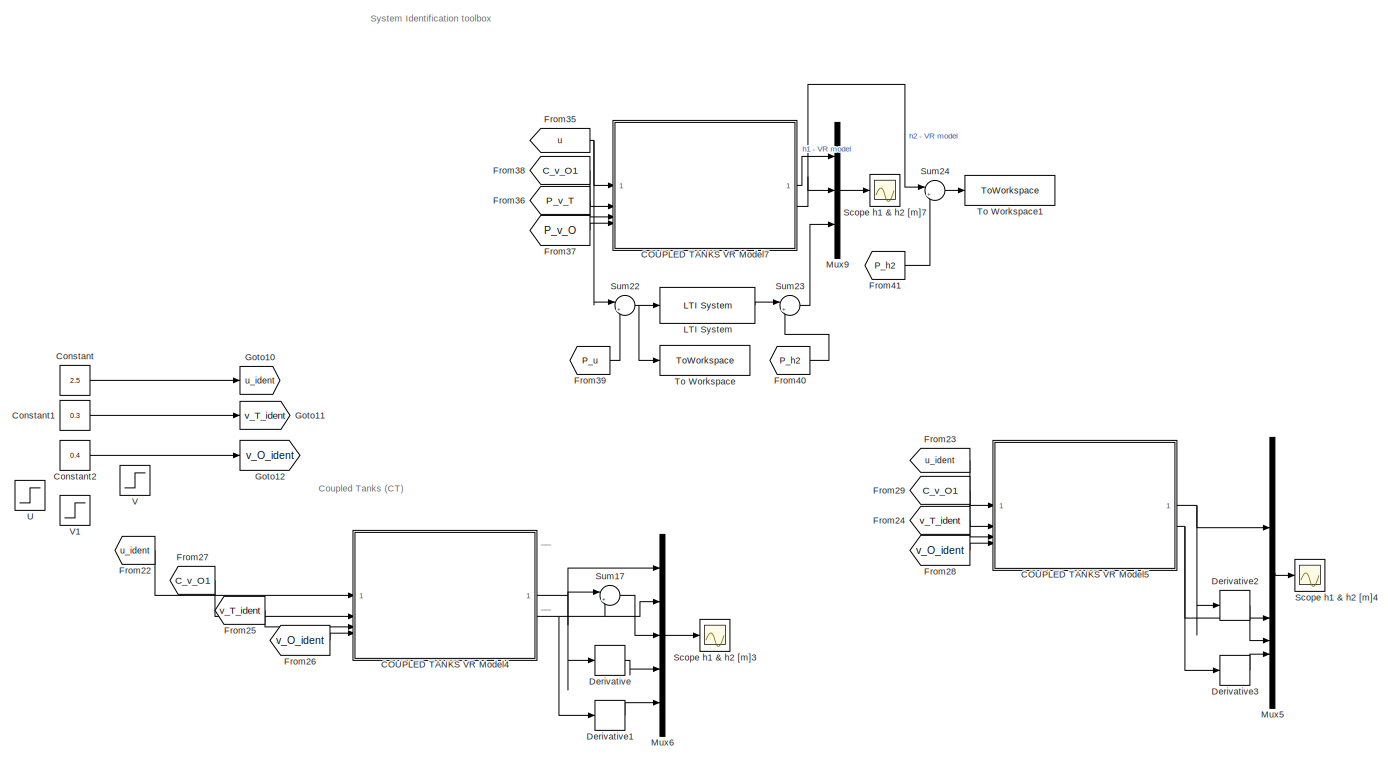
[diagram: root canvas - part 1/4, top right region]
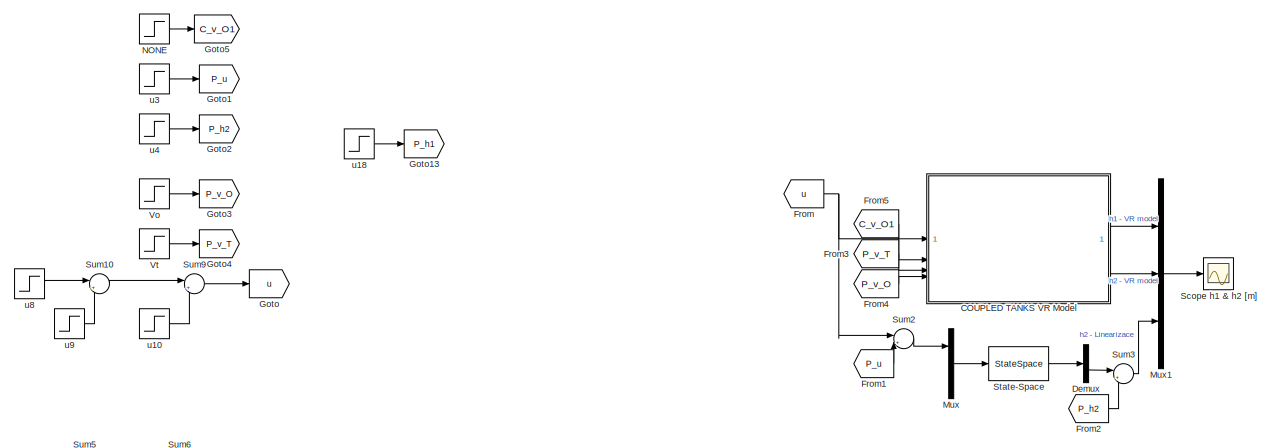
[diagram: root canvas - part 2/4, middle left region]
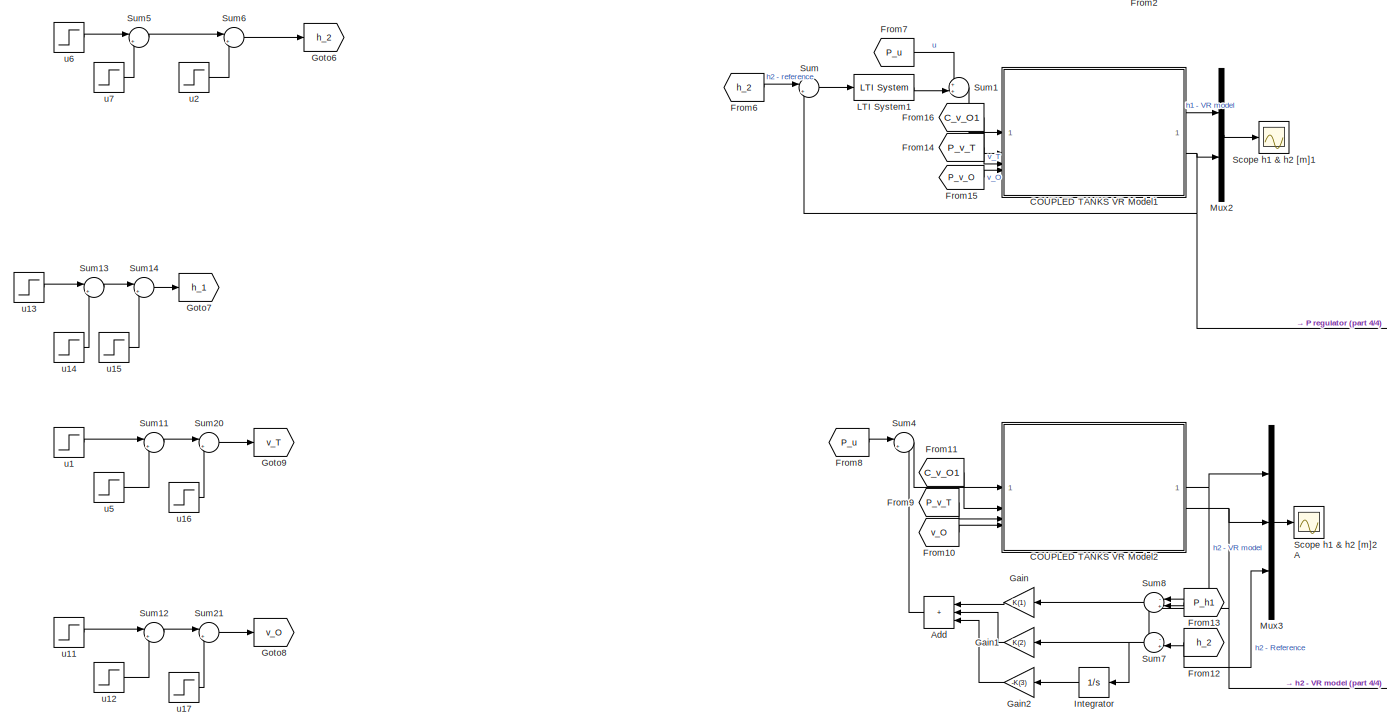
[diagram: root canvas - part 3/4, bottom left region]
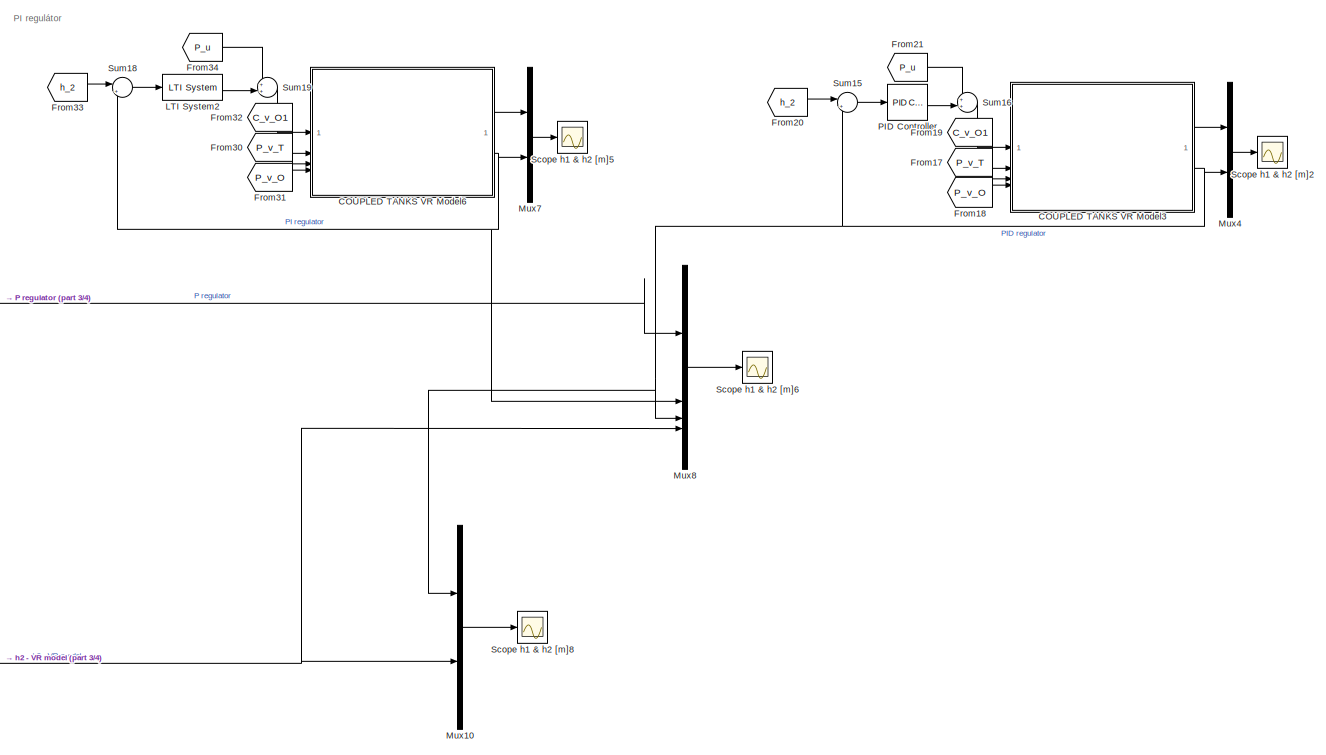
[diagram: root canvas - part 4/4, bottom right region]
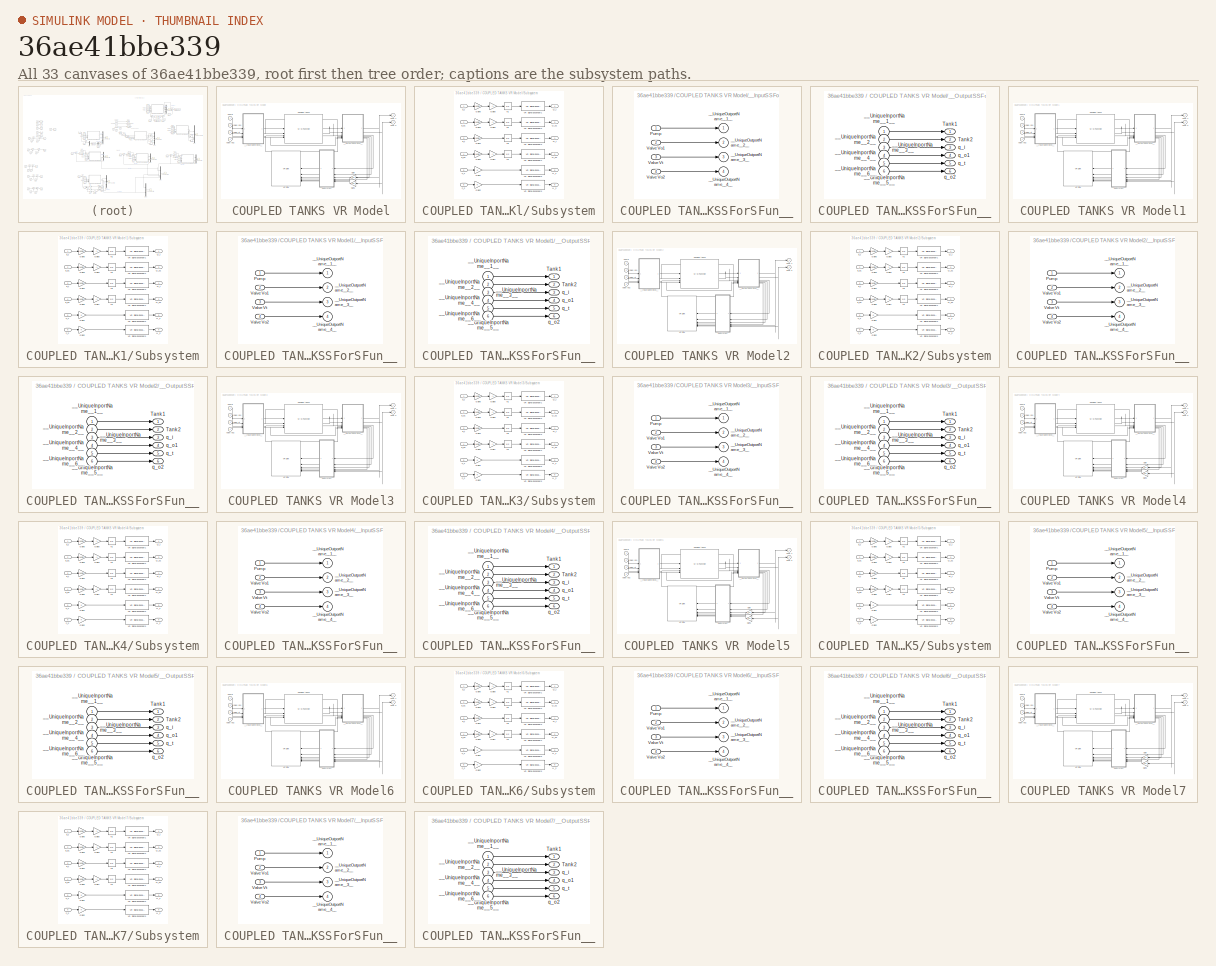
[diagram: thumbnail index - all 33 canvases of the model, root first then tree order]
MODEL mdl_36ae41bbe339
KIND model
CONFIG AbsTol = auto
CONFIG EnableMultiTasking = on
CONFIG FixedStep = auto
CONFIG InitFcn = g = 9.81; %gravitational constant\n\n% showVR = 1; %show VR world\n% h1_init = 0; %initial condition\n% h2_init = 0; %initial condition
CONFIG MaxStep = 1e-1
CONFIG MinStep = auto
CONFIG RelTol = 1e-3
CONFIG SampleTimeConstraint = Unconstrained
CONFIG SolverName = ode45
CONFIG StartTime = 0.0
CONFIG StopTime = 400
BLOCK [Sum] Add
  IconShape = rectangular
  Inputs = +++
BLOCK [SubSystem] COUPLED TANKS VR Model
BLOCK [M-S-Function] COUPLED TANKS VR Model/Coupled tanks
  FunctionName = CoupledProngTanks
  Parameters = h10 h20
BLOCK [Gain] COUPLED TANKS VR Model/Gain
  Gain = 120
BLOCK [Gain] COUPLED TANKS VR Model/Gain1
  Gain = 120
BLOCK [Inport] COUPLED TANKS VR Model/Pump
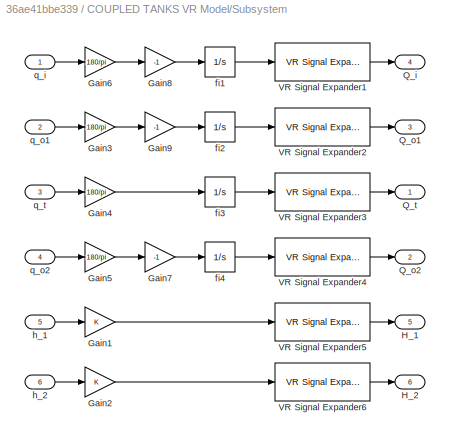
BLOCK [SubSystem] COUPLED TANKS VR Model/Subsystem
BLOCK [Gain] COUPLED TANKS VR Model/Subsystem/Gain1
BLOCK [Gain] COUPLED TANKS VR Model/Subsystem/Gain2
BLOCK [Gain] COUPLED TANKS VR Model/Subsystem/Gain3
  Gain = 180/pi
BLOCK [Gain] COUPLED TANKS VR Model/Subsystem/Gain4
  Gain = 180/pi
BLOCK [Gain] COUPLED TANKS VR Model/Subsystem/Gain5
  Gain = 180/pi
BLOCK [Gain] COUPLED TANKS VR Model/Subsystem/Gain6
  Gain = 180/pi
BLOCK [Gain] COUPLED TANKS VR Model/Subsystem/Gain7
  Gain = -1
BLOCK [Gain] COUPLED TANKS VR Model/Subsystem/Gain8
  Gain = -1
BLOCK [Gain] COUPLED TANKS VR Model/Subsystem/Gain9
  Gain = -1
BLOCK [Outport] COUPLED TANKS VR Model/Subsystem/H_1
  Port = 5
BLOCK [Outport] COUPLED TANKS VR Model/Subsystem/H_2
  Port = 6
BLOCK [Outport] COUPLED TANKS VR Model/Subsystem/Q_i
  Port = 4
BLOCK [Outport] COUPLED TANKS VR Model/Subsystem/Q_o1
  Port = 3
BLOCK [Outport] COUPLED TANKS VR Model/Subsystem/Q_o2
  Port = 2
BLOCK [Outport] COUPLED TANKS VR Model/Subsystem/Q_t
BLOCK [Reference] COUPLED TANKS VR Model/Subsystem/VR Signal Expander1  REF=vrlib/VR Signal Expander
  SourceBlock = vrlib/VR Signal Expander
  SourceType = VR Signal Expander
BLOCK [Reference] COUPLED TANKS VR Model/Subsystem/VR Signal Expander2  REF=vrlib/VR Signal Expander
  SourceBlock = vrlib/VR Signal Expander
  SourceType = VR Signal Expander
BLOCK [Reference] COUPLED TANKS VR Model/Subsystem/VR Signal Expander3  REF=vrlib/VR Signal Expander
  SourceBlock = vrlib/VR Signal Expander
  SourceType = VR Signal Expander
BLOCK [Reference] COUPLED TANKS VR Model/Subsystem/VR Signal Expander4  REF=vrlib/VR Signal Expander
  SourceBlock = vrlib/VR Signal Expander
  SourceType = VR Signal Expander
BLOCK [Reference] COUPLED TANKS VR Model/Subsystem/VR Signal Expander5  REF=vrlib/VR Signal Expander
  SourceBlock = vrlib/VR Signal Expander
  SourceType = VR Signal Expander
BLOCK [Reference] COUPLED TANKS VR Model/Subsystem/VR Signal Expander6  REF=vrlib/VR Signal Expander
  SourceBlock = vrlib/VR Signal Expander
  SourceType = VR Signal Expander
BLOCK [Integrator] COUPLED TANKS VR Model/Subsystem/fi1
BLOCK [Integrator] COUPLED TANKS VR Model/Subsystem/fi2
BLOCK [Integrator] COUPLED TANKS VR Model/Subsystem/fi3
BLOCK [Integrator] COUPLED TANKS VR Model/Subsystem/fi4
BLOCK [Inport] COUPLED TANKS VR Model/Subsystem/h_1
  Port = 5
BLOCK [Inport] COUPLED TANKS VR Model/Subsystem/h_2
  Port = 6
BLOCK [Inport] COUPLED TANKS VR Model/Subsystem/q_i
BLOCK [Inport] COUPLED TANKS VR Model/Subsystem/q_o1
  Port = 2
BLOCK [Inport] COUPLED TANKS VR Model/Subsystem/q_o2
  Port = 4
BLOCK [Inport] COUPLED TANKS VR Model/Subsystem/q_t
  Port = 3
BLOCK [Outport] COUPLED TANKS VR Model/Tank 1
  NameLocation = top
  OutDataTypeStr = double
  PortDimensions = 1
  SampleTime = [-1 0]
  SignalType = real
BLOCK [Outport] COUPLED TANKS VR Model/Tank 2
  OutDataTypeStr = double
  Port = 2
  PortDimensions = 1
  SampleTime = [-1 0]
  SignalType = real
BLOCK [Reference] COUPLED TANKS VR Model/VR Sink  REF=vrlib/VR Sink
  InstantiateOnLoad = on
  SourceBlock = vrlib/VR Sink
  SourceType = Virtual Reality Sink
BLOCK [Inport] COUPLED TANKS VR Model/Valve Vo1
  Port = 2
BLOCK [Inport] COUPLED TANKS VR Model/Valve Vo2
  Port = 4
BLOCK [Inport] COUPLED TANKS VR Model/Valve Vt
  Port = 3
BLOCK [SubSystem] COUPLED TANKS VR Model/__InputSSForSFun__
  PermitHierarchicalResolution = ExplicitOnly
BLOCK [Inport] COUPLED TANKS VR Model/__InputSSForSFun__/Pump
BLOCK [Inport] COUPLED TANKS VR Model/__InputSSForSFun__/Valve Vo1
  NameLocation = top
  Port = 2
BLOCK [Inport] COUPLED TANKS VR Model/__InputSSForSFun__/Valve Vo2
  Port = 4
BLOCK [Inport] COUPLED TANKS VR Model/__InputSSForSFun__/Valve Vt
  Port = 3
BLOCK [Outport] COUPLED TANKS VR Model/__InputSSForSFun__/__UniqueOutportName__1__
BLOCK [Outport] COUPLED TANKS VR Model/__InputSSForSFun__/__UniqueOutportName__2__
  Port = 2
BLOCK [Outport] COUPLED TANKS VR Model/__InputSSForSFun__/__UniqueOutportName__3__
  Port = 3
BLOCK [Outport] COUPLED TANKS VR Model/__InputSSForSFun__/__UniqueOutportName__4__
  Port = 4
BLOCK [SubSystem] COUPLED TANKS VR Model/__OutputSSForSFun__
  PermitHierarchicalResolution = ExplicitOnly
BLOCK [Outport] COUPLED TANKS VR Model/__OutputSSForSFun__/Tank 1
  OutDataTypeStr = double
  PortDimensions = 1
  SampleTime = [-1 0]
  SignalType = real
BLOCK [Outport] COUPLED TANKS VR Model/__OutputSSForSFun__/Tank 2
  OutDataTypeStr = double
  Port = 2
  PortDimensions = 1
  SampleTime = [-1 0]
  SignalType = real
BLOCK [Inport] COUPLED TANKS VR Model/__OutputSSForSFun__/__UniqueInportName__1__
BLOCK [Inport] COUPLED TANKS VR Model/__OutputSSForSFun__/__UniqueInportName__2__
  Port = 2
BLOCK [Inport] COUPLED TANKS VR Model/__OutputSSForSFun__/__UniqueInportName__3__
  Port = 3
BLOCK [Inport] COUPLED TANKS VR Model/__OutputSSForSFun__/__UniqueInportName__4__
  Port = 4
BLOCK [Inport] COUPLED TANKS VR Model/__OutputSSForSFun__/__UniqueInportName__5__
  Port = 5
BLOCK [Inport] COUPLED TANKS VR Model/__OutputSSForSFun__/__UniqueInportName__6__
  Port = 6
BLOCK [Outport] COUPLED TANKS VR Model/__OutputSSForSFun__/q_i
  OutDataTypeStr = double
  Port = 3
  PortDimensions = 1
  SampleTime = [0 1]
  SignalType = real
BLOCK [Outport] COUPLED TANKS VR Model/__OutputSSForSFun__/q_o1
  OutDataTypeStr = double
  Port = 4
  PortDimensions = 1
  SampleTime = [-1 0]
  SignalType = real
BLOCK [Outport] COUPLED TANKS VR Model/__OutputSSForSFun__/q_o2
  OutDataTypeStr = double
  Port = 6
  PortDimensions = 1
  SampleTime = [-1 0]
  SignalType = real
BLOCK [Outport] COUPLED TANKS VR Model/__OutputSSForSFun__/q_t
  OutDataTypeStr = double
  Port = 5
  PortDimensions = 1
  SampleTime = [-1 0]
  SignalType = real
BLOCK [SubSystem] COUPLED TANKS VR Model1
BLOCK [M-S-Function] COUPLED TANKS VR Model1/Coupled tanks
  FunctionName = CoupledProngTanks
  Parameters = h10 h20
BLOCK [Inport] COUPLED TANKS VR Model1/Pump
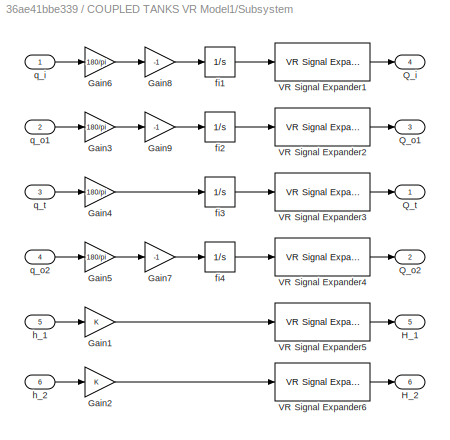
BLOCK [SubSystem] COUPLED TANKS VR Model1/Subsystem
BLOCK [Gain] COUPLED TANKS VR Model1/Subsystem/Gain1
BLOCK [Gain] COUPLED TANKS VR Model1/Subsystem/Gain2
BLOCK [Gain] COUPLED TANKS VR Model1/Subsystem/Gain3
  Gain = 180/pi
BLOCK [Gain] COUPLED TANKS VR Model1/Subsystem/Gain4
  Gain = 180/pi
BLOCK [Gain] COUPLED TANKS VR Model1/Subsystem/Gain5
  Gain = 180/pi
BLOCK [Gain] COUPLED TANKS VR Model1/Subsystem/Gain6
  Gain = 180/pi
BLOCK [Gain] COUPLED TANKS VR Model1/Subsystem/Gain7
  Gain = -1
BLOCK [Gain] COUPLED TANKS VR Model1/Subsystem/Gain8
  Gain = -1
BLOCK [Gain] COUPLED TANKS VR Model1/Subsystem/Gain9
  Gain = -1
BLOCK [Outport] COUPLED TANKS VR Model1/Subsystem/H_1
  Port = 5
BLOCK [Outport] COUPLED TANKS VR Model1/Subsystem/H_2
  Port = 6
BLOCK [Outport] COUPLED TANKS VR Model1/Subsystem/Q_i
  Port = 4
BLOCK [Outport] COUPLED TANKS VR Model1/Subsystem/Q_o1
  Port = 3
BLOCK [Outport] COUPLED TANKS VR Model1/Subsystem/Q_o2
  Port = 2
BLOCK [Outport] COUPLED TANKS VR Model1/Subsystem/Q_t
BLOCK [Reference] COUPLED TANKS VR Model1/Subsystem/VR Signal Expander1  REF=vrlib/VR Signal Expander
  SourceBlock = vrlib/VR Signal Expander
  SourceType = VR Signal Expander
BLOCK [Reference] COUPLED TANKS VR Model1/Subsystem/VR Signal Expander2  REF=vrlib/VR Signal Expander
  SourceBlock = vrlib/VR Signal Expander
  SourceType = VR Signal Expander
BLOCK [Reference] COUPLED TANKS VR Model1/Subsystem/VR Signal Expander3  REF=vrlib/VR Signal Expander
  SourceBlock = vrlib/VR Signal Expander
  SourceType = VR Signal Expander
BLOCK [Reference] COUPLED TANKS VR Model1/Subsystem/VR Signal Expander4  REF=vrlib/VR Signal Expander
  SourceBlock = vrlib/VR Signal Expander
  SourceType = VR Signal Expander
BLOCK [Reference] COUPLED TANKS VR Model1/Subsystem/VR Signal Expander5  REF=vrlib/VR Signal Expander
  SourceBlock = vrlib/VR Signal Expander
  SourceType = VR Signal Expander
BLOCK [Reference] COUPLED TANKS VR Model1/Subsystem/VR Signal Expander6  REF=vrlib/VR Signal Expander
  SourceBlock = vrlib/VR Signal Expander
  SourceType = VR Signal Expander
BLOCK [Integrator] COUPLED TANKS VR Model1/Subsystem/fi1
BLOCK [Integrator] COUPLED TANKS VR Model1/Subsystem/fi2
BLOCK [Integrator] COUPLED TANKS VR Model1/Subsystem/fi3
BLOCK [Integrator] COUPLED TANKS VR Model1/Subsystem/fi4
BLOCK [Inport] COUPLED TANKS VR Model1/Subsystem/h_1
  Port = 5
BLOCK [Inport] COUPLED TANKS VR Model1/Subsystem/h_2
  Port = 6
BLOCK [Inport] COUPLED TANKS VR Model1/Subsystem/q_i
BLOCK [Inport] COUPLED TANKS VR Model1/Subsystem/q_o1
  Port = 2
BLOCK [Inport] COUPLED TANKS VR Model1/Subsystem/q_o2
  Port = 4
BLOCK [Inport] COUPLED TANKS VR Model1/Subsystem/q_t
  Port = 3
BLOCK [Outport] COUPLED TANKS VR Model1/Tank 1
  NameLocation = top
  OutDataTypeStr = double
  PortDimensions = 1
  SampleTime = [-1 0]
  SignalType = real
BLOCK [Outport] COUPLED TANKS VR Model1/Tank 2
  OutDataTypeStr = double
  Port = 2
  PortDimensions = 1
  SampleTime = [-1 0]
  SignalType = real
BLOCK [Reference] COUPLED TANKS VR Model1/VR Sink  REF=vrlib/VR Sink
  InstantiateOnLoad = on
  SourceBlock = vrlib/VR Sink
  SourceType = Virtual Reality Sink
BLOCK [Inport] COUPLED TANKS VR Model1/Valve Vo1
  Port = 2
BLOCK [Inport] COUPLED TANKS VR Model1/Valve Vo2
  Port = 4
BLOCK [Inport] COUPLED TANKS VR Model1/Valve Vt
  Port = 3
BLOCK [SubSystem] COUPLED TANKS VR Model1/__InputSSForSFun__
  PermitHierarchicalResolution = ExplicitOnly
BLOCK [Inport] COUPLED TANKS VR Model1/__InputSSForSFun__/Pump
BLOCK [Inport] COUPLED TANKS VR Model1/__InputSSForSFun__/Valve Vo1
  NameLocation = top
  Port = 2
BLOCK [Inport] COUPLED TANKS VR Model1/__InputSSForSFun__/Valve Vo2
  Port = 4
BLOCK [Inport] COUPLED TANKS VR Model1/__InputSSForSFun__/Valve Vt
  Port = 3
BLOCK [Outport] COUPLED TANKS VR Model1/__InputSSForSFun__/__UniqueOutportName__1__
BLOCK [Outport] COUPLED TANKS VR Model1/__InputSSForSFun__/__UniqueOutportName__2__
  Port = 2
BLOCK [Outport] COUPLED TANKS VR Model1/__InputSSForSFun__/__UniqueOutportName__3__
  Port = 3
BLOCK [Outport] COUPLED TANKS VR Model1/__InputSSForSFun__/__UniqueOutportName__4__
  Port = 4
BLOCK [SubSystem] COUPLED TANKS VR Model1/__OutputSSForSFun__
  PermitHierarchicalResolution = ExplicitOnly
BLOCK [Outport] COUPLED TANKS VR Model1/__OutputSSForSFun__/Tank 1
  OutDataTypeStr = double
  PortDimensions = 1
  SampleTime = [-1 0]
  SignalType = real
BLOCK [Outport] COUPLED TANKS VR Model1/__OutputSSForSFun__/Tank 2
  OutDataTypeStr = double
  Port = 2
  PortDimensions = 1
  SampleTime = [-1 0]
  SignalType = real
BLOCK [Inport] COUPLED TANKS VR Model1/__OutputSSForSFun__/__UniqueInportName__1__
BLOCK [Inport] COUPLED TANKS VR Model1/__OutputSSForSFun__/__UniqueInportName__2__
  Port = 2
BLOCK [Inport] COUPLED TANKS VR Model1/__OutputSSForSFun__/__UniqueInportName__3__
  Port = 3
BLOCK [Inport] COUPLED TANKS VR Model1/__OutputSSForSFun__/__UniqueInportName__4__
  Port = 4
BLOCK [Inport] COUPLED TANKS VR Model1/__OutputSSForSFun__/__UniqueInportName__5__
  Port = 5
BLOCK [Inport] COUPLED TANKS VR Model1/__OutputSSForSFun__/__UniqueInportName__6__
  Port = 6
BLOCK [Outport] COUPLED TANKS VR Model1/__OutputSSForSFun__/q_i
  OutDataTypeStr = double
  Port = 3
  PortDimensions = 1
  SampleTime = [0 1]
  SignalType = real
BLOCK [Outport] COUPLED TANKS VR Model1/__OutputSSForSFun__/q_o1
  OutDataTypeStr = double
  Port = 4
  PortDimensions = 1
  SampleTime = [-1 0]
  SignalType = real
BLOCK [Outport] COUPLED TANKS VR Model1/__OutputSSForSFun__/q_o2
  OutDataTypeStr = double
  Port = 6
  PortDimensions = 1
  SampleTime = [-1 0]
  SignalType = real
BLOCK [Outport] COUPLED TANKS VR Model1/__OutputSSForSFun__/q_t
  OutDataTypeStr = double
  Port = 5
  PortDimensions = 1
  SampleTime = [-1 0]
  SignalType = real
BLOCK [SubSystem] COUPLED TANKS VR Model2
BLOCK [M-S-Function] COUPLED TANKS VR Model2/Coupled tanks
  FunctionName = CoupledProngTanks
  Parameters = h10 h20
BLOCK [Inport] COUPLED TANKS VR Model2/Pump
BLOCK [SubSystem] COUPLED TANKS VR Model2/Subsystem
BLOCK [Gain] COUPLED TANKS VR Model2/Subsystem/Gain1
BLOCK [Gain] COUPLED TANKS VR Model2/Subsystem/Gain2
BLOCK [Gain] COUPLED TANKS VR Model2/Subsystem/Gain3
  Gain = 180/pi
BLOCK [Gain] COUPLED TANKS VR Model2/Subsystem/Gain4
  Gain = 180/pi
BLOCK [Gain] COUPLED TANKS VR Model2/Subsystem/Gain5
  Gain = 180/pi
BLOCK [Gain] COUPLED TANKS VR Model2/Subsystem/Gain6
  Gain = 180/pi
BLOCK [Gain] COUPLED TANKS VR Model2/Subsystem/Gain7
  Gain = -1
BLOCK [Gain] COUPLED TANKS VR Model2/Subsystem/Gain8
  Gain = -1
BLOCK [Gain] COUPLED TANKS VR Model2/Subsystem/Gain9
  Gain = -1
BLOCK [Outport] COUPLED TANKS VR Model2/Subsystem/H_1
  Port = 5
BLOCK [Outport] COUPLED TANKS VR Model2/Subsystem/H_2
  Port = 6
BLOCK [Outport] COUPLED TANKS VR Model2/Subsystem/Q_i
  Port = 4
BLOCK [Outport] COUPLED TANKS VR Model2/Subsystem/Q_o1
  Port = 3
BLOCK [Outport] COUPLED TANKS VR Model2/Subsystem/Q_o2
  Port = 2
BLOCK [Outport] COUPLED TANKS VR Model2/Subsystem/Q_t
BLOCK [Reference] COUPLED TANKS VR Model2/Subsystem/VR Signal Expander1  REF=vrlib/VR Signal Expander
  SourceBlock = vrlib/VR Signal Expander
  SourceType = VR Signal Expander
BLOCK [Reference] COUPLED TANKS VR Model2/Subsystem/VR Signal Expander2  REF=vrlib/VR Signal Expander
  SourceBlock = vrlib/VR Signal Expander
  SourceType = VR Signal Expander
BLOCK [Reference] COUPLED TANKS VR Model2/Subsystem/VR Signal Expander3  REF=vrlib/VR Signal Expander
  SourceBlock = vrlib/VR Signal Expander
  SourceType = VR Signal Expander
BLOCK [Reference] COUPLED TANKS VR Model2/Subsystem/VR Signal Expander4  REF=vrlib/VR Signal Expander
  SourceBlock = vrlib/VR Signal Expander
  SourceType = VR Signal Expander
BLOCK [Reference] COUPLED TANKS VR Model2/Subsystem/VR Signal Expander5  REF=vrlib/VR Signal Expander
  SourceBlock = vrlib/VR Signal Expander
  SourceType = VR Signal Expander
BLOCK [Reference] COUPLED TANKS VR Model2/Subsystem/VR Signal Expander6  REF=vrlib/VR Signal Expander
  SourceBlock = vrlib/VR Signal Expander
  SourceType = VR Signal Expander
BLOCK [Integrator] COUPLED TANKS VR Model2/Subsystem/fi1
BLOCK [Integrator] COUPLED TANKS VR Model2/Subsystem/fi2
BLOCK [Integrator] COUPLED TANKS VR Model2/Subsystem/fi3
BLOCK [Integrator] COUPLED TANKS VR Model2/Subsystem/fi4
BLOCK [Inport] COUPLED TANKS VR Model2/Subsystem/h_1
  Port = 5
BLOCK [Inport] COUPLED TANKS VR Model2/Subsystem/h_2
  Port = 6
BLOCK [Inport] COUPLED TANKS VR Model2/Subsystem/q_i
BLOCK [Inport] COUPLED TANKS VR Model2/Subsystem/q_o1
  Port = 2
BLOCK [Inport] COUPLED TANKS VR Model2/Subsystem/q_o2
  Port = 4
BLOCK [Inport] COUPLED TANKS VR Model2/Subsystem/q_t
  Port = 3
BLOCK [Outport] COUPLED TANKS VR Model2/Tank 1
  NameLocation = top
  OutDataTypeStr = double
  PortDimensions = 1
  SampleTime = [-1 0]
  SignalType = real
BLOCK [Outport] COUPLED TANKS VR Model2/Tank 2
  OutDataTypeStr = double
  Port = 2
  PortDimensions = 1
  SampleTime = [-1 0]
  SignalType = real
BLOCK [Reference] COUPLED TANKS VR Model2/VR Sink  REF=vrlib/VR Sink
  InstantiateOnLoad = on
  SourceBlock = vrlib/VR Sink
  SourceType = Virtual Reality Sink
BLOCK [Inport] COUPLED TANKS VR Model2/Valve Vo1
  Port = 2
BLOCK [Inport] COUPLED TANKS VR Model2/Valve Vo2
  Port = 4
BLOCK [Inport] COUPLED TANKS VR Model2/Valve Vt
  Port = 3
BLOCK [SubSystem] COUPLED TANKS VR Model2/__InputSSForSFun__
  PermitHierarchicalResolution = ExplicitOnly
BLOCK [Inport] COUPLED TANKS VR Model2/__InputSSForSFun__/Pump
BLOCK [Inport] COUPLED TANKS VR Model2/__InputSSForSFun__/Valve Vo1
  NameLocation = top
  Port = 2
BLOCK [Inport] COUPLED TANKS VR Model2/__InputSSForSFun__/Valve Vo2
  Port = 4
BLOCK [Inport] COUPLED TANKS VR Model2/__InputSSForSFun__/Valve Vt
  Port = 3
BLOCK [Outport] COUPLED TANKS VR Model2/__InputSSForSFun__/__UniqueOutportName__1__
BLOCK [Outport] COUPLED TANKS VR Model2/__InputSSForSFun__/__UniqueOutportName__2__
  Port = 2
BLOCK [Outport] COUPLED TANKS VR Model2/__InputSSForSFun__/__UniqueOutportName__3__
  Port = 3
BLOCK [Outport] COUPLED TANKS VR Model2/__InputSSForSFun__/__UniqueOutportName__4__
  Port = 4
BLOCK [SubSystem] COUPLED TANKS VR Model2/__OutputSSForSFun__
  PermitHierarchicalResolution = ExplicitOnly
BLOCK [Outport] COUPLED TANKS VR Model2/__OutputSSForSFun__/Tank 1
  OutDataTypeStr = double
  PortDimensions = 1
  SampleTime = [-1 0]
  SignalType = real
BLOCK [Outport] COUPLED TANKS VR Model2/__OutputSSForSFun__/Tank 2
  OutDataTypeStr = double
  Port = 2
  PortDimensions = 1
  SampleTime = [-1 0]
  SignalType = real
BLOCK [Inport] COUPLED TANKS VR Model2/__OutputSSForSFun__/__UniqueInportName__1__
BLOCK [Inport] COUPLED TANKS VR Model2/__OutputSSForSFun__/__UniqueInportName__2__
  Port = 2
BLOCK [Inport] COUPLED TANKS VR Model2/__OutputSSForSFun__/__UniqueInportName__3__
  Port = 3
BLOCK [Inport] COUPLED TANKS VR Model2/__OutputSSForSFun__/__UniqueInportName__4__
  Port = 4
BLOCK [Inport] COUPLED TANKS VR Model2/__OutputSSForSFun__/__UniqueInportName__5__
  Port = 5
BLOCK [Inport] COUPLED TANKS VR Model2/__OutputSSForSFun__/__UniqueInportName__6__
  Port = 6
BLOCK [Outport] COUPLED TANKS VR Model2/__OutputSSForSFun__/q_i
  OutDataTypeStr = double
  Port = 3
  PortDimensions = 1
  SampleTime = [0 1]
  SignalType = real
BLOCK [Outport] COUPLED TANKS VR Model2/__OutputSSForSFun__/q_o1
  OutDataTypeStr = double
  Port = 4
  PortDimensions = 1
  SampleTime = [-1 0]
  SignalType = real
BLOCK [Outport] COUPLED TANKS VR Model2/__OutputSSForSFun__/q_o2
  OutDataTypeStr = double
  Port = 6
  PortDimensions = 1
  SampleTime = [-1 0]
  SignalType = real
BLOCK [Outport] COUPLED TANKS VR Model2/__OutputSSForSFun__/q_t
  OutDataTypeStr = double
  Port = 5
  PortDimensions = 1
  SampleTime = [-1 0]
  SignalType = real
BLOCK [SubSystem] COUPLED TANKS VR Model3
BLOCK [M-S-Function] COUPLED TANKS VR Model3/Coupled tanks
  FunctionName = CoupledProngTanks
  Parameters = h10 h20
BLOCK [Inport] COUPLED TANKS VR Model3/Pump
BLOCK [SubSystem] COUPLED TANKS VR Model3/Subsystem
BLOCK [Gain] COUPLED TANKS VR Model3/Subsystem/Gain1
BLOCK [Gain] COUPLED TANKS VR Model3/Subsystem/Gain2
BLOCK [Gain] COUPLED TANKS VR Model3/Subsystem/Gain3
  Gain = 180/pi
BLOCK [Gain] COUPLED TANKS VR Model3/Subsystem/Gain4
  Gain = 180/pi
BLOCK [Gain] COUPLED TANKS VR Model3/Subsystem/Gain5
  Gain = 180/pi
BLOCK [Gain] COUPLED TANKS VR Model3/Subsystem/Gain6
  Gain = 180/pi
BLOCK [Gain] COUPLED TANKS VR Model3/Subsystem/Gain7
  Gain = -1
BLOCK [Gain] COUPLED TANKS VR Model3/Subsystem/Gain8
  Gain = -1
BLOCK [Gain] COUPLED TANKS VR Model3/Subsystem/Gain9
  Gain = -1
BLOCK [Outport] COUPLED TANKS VR Model3/Subsystem/H_1
  Port = 5
BLOCK [Outport] COUPLED TANKS VR Model3/Subsystem/H_2
  Port = 6
BLOCK [Outport] COUPLED TANKS VR Model3/Subsystem/Q_i
  Port = 4
BLOCK [Outport] COUPLED TANKS VR Model3/Subsystem/Q_o1
  Port = 3
BLOCK [Outport] COUPLED TANKS VR Model3/Subsystem/Q_o2
  Port = 2
BLOCK [Outport] COUPLED TANKS VR Model3/Subsystem/Q_t
BLOCK [Reference] COUPLED TANKS VR Model3/Subsystem/VR Signal Expander1  REF=vrlib/VR Signal Expander
  SourceBlock = vrlib/VR Signal Expander
  SourceType = VR Signal Expander
BLOCK [Reference] COUPLED TANKS VR Model3/Subsystem/VR Signal Expander2  REF=vrlib/VR Signal Expander
  SourceBlock = vrlib/VR Signal Expander
  SourceType = VR Signal Expander
BLOCK [Reference] COUPLED TANKS VR Model3/Subsystem/VR Signal Expander3  REF=vrlib/VR Signal Expander
  SourceBlock = vrlib/VR Signal Expander
  SourceType = VR Signal Expander
BLOCK [Reference] COUPLED TANKS VR Model3/Subsystem/VR Signal Expander4  REF=vrlib/VR Signal Expander
  SourceBlock = vrlib/VR Signal Expander
  SourceType = VR Signal Expander
BLOCK [Reference] COUPLED TANKS VR Model3/Subsystem/VR Signal Expander5  REF=vrlib/VR Signal Expander
  SourceBlock = vrlib/VR Signal Expander
  SourceType = VR Signal Expander
BLOCK [Reference] COUPLED TANKS VR Model3/Subsystem/VR Signal Expander6  REF=vrlib/VR Signal Expander
  SourceBlock = vrlib/VR Signal Expander
  SourceType = VR Signal Expander
BLOCK [Integrator] COUPLED TANKS VR Model3/Subsystem/fi1
BLOCK [Integrator] COUPLED TANKS VR Model3/Subsystem/fi2
BLOCK [Integrator] COUPLED TANKS VR Model3/Subsystem/fi3
BLOCK [Integrator] COUPLED TANKS VR Model3/Subsystem/fi4
BLOCK [Inport] COUPLED TANKS VR Model3/Subsystem/h_1
  Port = 5
BLOCK [Inport] COUPLED TANKS VR Model3/Subsystem/h_2
  Port = 6
BLOCK [Inport] COUPLED TANKS VR Model3/Subsystem/q_i
BLOCK [Inport] COUPLED TANKS VR Model3/Subsystem/q_o1
  Port = 2
BLOCK [Inport] COUPLED TANKS VR Model3/Subsystem/q_o2
  Port = 4
BLOCK [Inport] COUPLED TANKS VR Model3/Subsystem/q_t
  Port = 3
BLOCK [Outport] COUPLED TANKS VR Model3/Tank 1
  NameLocation = top
  OutDataTypeStr = double
  PortDimensions = 1
  SampleTime = [-1 0]
  SignalType = real
BLOCK [Outport] COUPLED TANKS VR Model3/Tank 2
  OutDataTypeStr = double
  Port = 2
  PortDimensions = 1
  SampleTime = [-1 0]
  SignalType = real
BLOCK [Reference] COUPLED TANKS VR Model3/VR Sink  REF=vrlib/VR Sink
  InstantiateOnLoad = on
  SourceBlock = vrlib/VR Sink
  SourceType = Virtual Reality Sink
BLOCK [Inport] COUPLED TANKS VR Model3/Valve Vo1
  Port = 2
BLOCK [Inport] COUPLED TANKS VR Model3/Valve Vo2
  Port = 4
BLOCK [Inport] COUPLED TANKS VR Model3/Valve Vt
  Port = 3
BLOCK [SubSystem] COUPLED TANKS VR Model3/__InputSSForSFun__
  PermitHierarchicalResolution = ExplicitOnly
BLOCK [Inport] COUPLED TANKS VR Model3/__InputSSForSFun__/Pump
BLOCK [Inport] COUPLED TANKS VR Model3/__InputSSForSFun__/Valve Vo1
  NameLocation = top
  Port = 2
BLOCK [Inport] COUPLED TANKS VR Model3/__InputSSForSFun__/Valve Vo2
  Port = 4
BLOCK [Inport] COUPLED TANKS VR Model3/__InputSSForSFun__/Valve Vt
  Port = 3
BLOCK [Outport] COUPLED TANKS VR Model3/__InputSSForSFun__/__UniqueOutportName__1__
BLOCK [Outport] COUPLED TANKS VR Model3/__InputSSForSFun__/__UniqueOutportName__2__
  Port = 2
BLOCK [Outport] COUPLED TANKS VR Model3/__InputSSForSFun__/__UniqueOutportName__3__
  Port = 3
BLOCK [Outport] COUPLED TANKS VR Model3/__InputSSForSFun__/__UniqueOutportName__4__
  Port = 4
BLOCK [SubSystem] COUPLED TANKS VR Model3/__OutputSSForSFun__
  PermitHierarchicalResolution = ExplicitOnly
BLOCK [Outport] COUPLED TANKS VR Model3/__OutputSSForSFun__/Tank 1
  OutDataTypeStr = double
  PortDimensions = 1
  SampleTime = [-1 0]
  SignalType = real
BLOCK [Outport] COUPLED TANKS VR Model3/__OutputSSForSFun__/Tank 2
  OutDataTypeStr = double
  Port = 2
  PortDimensions = 1
  SampleTime = [-1 0]
  SignalType = real
BLOCK [Inport] COUPLED TANKS VR Model3/__OutputSSForSFun__/__UniqueInportName__1__
BLOCK [Inport] COUPLED TANKS VR Model3/__OutputSSForSFun__/__UniqueInportName__2__
  Port = 2
BLOCK [Inport] COUPLED TANKS VR Model3/__OutputSSForSFun__/__UniqueInportName__3__
  Port = 3
BLOCK [Inport] COUPLED TANKS VR Model3/__OutputSSForSFun__/__UniqueInportName__4__
  Port = 4
BLOCK [Inport] COUPLED TANKS VR Model3/__OutputSSForSFun__/__UniqueInportName__5__
  Port = 5
BLOCK [Inport] COUPLED TANKS VR Model3/__OutputSSForSFun__/__UniqueInportName__6__
  Port = 6
BLOCK [Outport] COUPLED TANKS VR Model3/__OutputSSForSFun__/q_i
  OutDataTypeStr = double
  Port = 3
  PortDimensions = 1
  SampleTime = [0 1]
  SignalType = real
BLOCK [Outport] COUPLED TANKS VR Model3/__OutputSSForSFun__/q_o1
  OutDataTypeStr = double
  Port = 4
  PortDimensions = 1
  SampleTime = [-1 0]
  SignalType = real
BLOCK [Outport] COUPLED TANKS VR Model3/__OutputSSForSFun__/q_o2
  OutDataTypeStr = double
  Port = 6
  PortDimensions = 1
  SampleTime = [-1 0]
  SignalType = real
BLOCK [Outport] COUPLED TANKS VR Model3/__OutputSSForSFun__/q_t
  OutDataTypeStr = double
  Port = 5
  PortDimensions = 1
  SampleTime = [-1 0]
  SignalType = real
BLOCK [SubSystem] COUPLED TANKS VR Model4
  Commented = on
BLOCK [M-S-Function] COUPLED TANKS VR Model4/Coupled tanks
  FunctionName = CoupledProngTanks
  Parameters = h10 h20
BLOCK [Gain] COUPLED TANKS VR Model4/Gain
  Gain = 120
BLOCK [Gain] COUPLED TANKS VR Model4/Gain1
  Gain = 120
BLOCK [Inport] COUPLED TANKS VR Model4/Pump
BLOCK [SubSystem] COUPLED TANKS VR Model4/Subsystem
BLOCK [Gain] COUPLED TANKS VR Model4/Subsystem/Gain1
BLOCK [Gain] COUPLED TANKS VR Model4/Subsystem/Gain2
BLOCK [Gain] COUPLED TANKS VR Model4/Subsystem/Gain3
  Gain = 180/pi
BLOCK [Gain] COUPLED TANKS VR Model4/Subsystem/Gain4
  Gain = 180/pi
BLOCK [Gain] COUPLED TANKS VR Model4/Subsystem/Gain5
  Gain = 180/pi
BLOCK [Gain] COUPLED TANKS VR Model4/Subsystem/Gain6
  Gain = 180/pi
BLOCK [Gain] COUPLED TANKS VR Model4/Subsystem/Gain7
  Gain = -1
BLOCK [Gain] COUPLED TANKS VR Model4/Subsystem/Gain8
  Gain = -1
BLOCK [Gain] COUPLED TANKS VR Model4/Subsystem/Gain9
  Gain = -1
BLOCK [Outport] COUPLED TANKS VR Model4/Subsystem/H_1
  Port = 5
BLOCK [Outport] COUPLED TANKS VR Model4/Subsystem/H_2
  Port = 6
BLOCK [Outport] COUPLED TANKS VR Model4/Subsystem/Q_i
  Port = 4
BLOCK [Outport] COUPLED TANKS VR Model4/Subsystem/Q_o1
  Port = 3
BLOCK [Outport] COUPLED TANKS VR Model4/Subsystem/Q_o2
  Port = 2
BLOCK [Outport] COUPLED TANKS VR Model4/Subsystem/Q_t
BLOCK [Reference] COUPLED TANKS VR Model4/Subsystem/VR Signal Expander1  REF=vrlib/VR Signal Expander
  SourceBlock = vrlib/VR Signal Expander
  SourceType = VR Signal Expander
BLOCK [Reference] COUPLED TANKS VR Model4/Subsystem/VR Signal Expander2  REF=vrlib/VR Signal Expander
  SourceBlock = vrlib/VR Signal Expander
  SourceType = VR Signal Expander
BLOCK [Reference] COUPLED TANKS VR Model4/Subsystem/VR Signal Expander3  REF=vrlib/VR Signal Expander
  SourceBlock = vrlib/VR Signal Expander
  SourceType = VR Signal Expander
BLOCK [Reference] COUPLED TANKS VR Model4/Subsystem/VR Signal Expander4  REF=vrlib/VR Signal Expander
  SourceBlock = vrlib/VR Signal Expander
  SourceType = VR Signal Expander
BLOCK [Reference] COUPLED TANKS VR Model4/Subsystem/VR Signal Expander5  REF=vrlib/VR Signal Expander
  SourceBlock = vrlib/VR Signal Expander
  SourceType = VR Signal Expander
BLOCK [Reference] COUPLED TANKS VR Model4/Subsystem/VR Signal Expander6  REF=vrlib/VR Signal Expander
  SourceBlock = vrlib/VR Signal Expander
  SourceType = VR Signal Expander
BLOCK [Integrator] COUPLED TANKS VR Model4/Subsystem/fi1
BLOCK [Integrator] COUPLED TANKS VR Model4/Subsystem/fi2
BLOCK [Integrator] COUPLED TANKS VR Model4/Subsystem/fi3
BLOCK [Integrator] COUPLED TANKS VR Model4/Subsystem/fi4
BLOCK [Inport] COUPLED TANKS VR Model4/Subsystem/h_1
  Port = 5
BLOCK [Inport] COUPLED TANKS VR Model4/Subsystem/h_2
  Port = 6
BLOCK [Inport] COUPLED TANKS VR Model4/Subsystem/q_i
BLOCK [Inport] COUPLED TANKS VR Model4/Subsystem/q_o1
  Port = 2
BLOCK [Inport] COUPLED TANKS VR Model4/Subsystem/q_o2
  Port = 4
BLOCK [Inport] COUPLED TANKS VR Model4/Subsystem/q_t
  Port = 3
BLOCK [Outport] COUPLED TANKS VR Model4/Tank 1
  NameLocation = top
  OutDataTypeStr = double
  PortDimensions = 1
  SampleTime = [-1 0]
  SignalType = real
BLOCK [Outport] COUPLED TANKS VR Model4/Tank 2
  OutDataTypeStr = double
  Port = 2
  PortDimensions = 1
  SampleTime = [-1 0]
  SignalType = real
BLOCK [Reference] COUPLED TANKS VR Model4/VR Sink  REF=vrlib/VR Sink
  InstantiateOnLoad = on
  SourceBlock = vrlib/VR Sink
  SourceType = Virtual Reality Sink
BLOCK [Inport] COUPLED TANKS VR Model4/Valve Vo1
  Port = 2
BLOCK [Inport] COUPLED TANKS VR Model4/Valve Vo2
  Port = 4
BLOCK [Inport] COUPLED TANKS VR Model4/Valve Vt
  Port = 3
BLOCK [SubSystem] COUPLED TANKS VR Model4/__InputSSForSFun__
  PermitHierarchicalResolution = ExplicitOnly
BLOCK [Inport] COUPLED TANKS VR Model4/__InputSSForSFun__/Pump
BLOCK [Inport] COUPLED TANKS VR Model4/__InputSSForSFun__/Valve Vo1
  NameLocation = top
  Port = 2
BLOCK [Inport] COUPLED TANKS VR Model4/__InputSSForSFun__/Valve Vo2
  Port = 4
BLOCK [Inport] COUPLED TANKS VR Model4/__InputSSForSFun__/Valve Vt
  Port = 3
BLOCK [Outport] COUPLED TANKS VR Model4/__InputSSForSFun__/__UniqueOutportName__1__
BLOCK [Outport] COUPLED TANKS VR Model4/__InputSSForSFun__/__UniqueOutportName__2__
  Port = 2
BLOCK [Outport] COUPLED TANKS VR Model4/__InputSSForSFun__/__UniqueOutportName__3__
  Port = 3
BLOCK [Outport] COUPLED TANKS VR Model4/__InputSSForSFun__/__UniqueOutportName__4__
  Port = 4
BLOCK [SubSystem] COUPLED TANKS VR Model4/__OutputSSForSFun__
  PermitHierarchicalResolution = ExplicitOnly
BLOCK [Outport] COUPLED TANKS VR Model4/__OutputSSForSFun__/Tank 1
  OutDataTypeStr = double
  PortDimensions = 1
  SampleTime = [-1 0]
  SignalType = real
BLOCK [Outport] COUPLED TANKS VR Model4/__OutputSSForSFun__/Tank 2
  OutDataTypeStr = double
  Port = 2
  PortDimensions = 1
  SampleTime = [-1 0]
  SignalType = real
BLOCK [Inport] COUPLED TANKS VR Model4/__OutputSSForSFun__/__UniqueInportName__1__
BLOCK [Inport] COUPLED TANKS VR Model4/__OutputSSForSFun__/__UniqueInportName__2__
  Port = 2
BLOCK [Inport] COUPLED TANKS VR Model4/__OutputSSForSFun__/__UniqueInportName__3__
  Port = 3
BLOCK [Inport] COUPLED TANKS VR Model4/__OutputSSForSFun__/__UniqueInportName__4__
  Port = 4
BLOCK [Inport] COUPLED TANKS VR Model4/__OutputSSForSFun__/__UniqueInportName__5__
  Port = 5
BLOCK [Inport] COUPLED TANKS VR Model4/__OutputSSForSFun__/__UniqueInportName__6__
  Port = 6
BLOCK [Outport] COUPLED TANKS VR Model4/__OutputSSForSFun__/q_i
  OutDataTypeStr = double
  Port = 3
  PortDimensions = 1
  SampleTime = [0 1]
  SignalType = real
BLOCK [Outport] COUPLED TANKS VR Model4/__OutputSSForSFun__/q_o1
  OutDataTypeStr = double
  Port = 4
  PortDimensions = 1
  SampleTime = [-1 0]
  SignalType = real
BLOCK [Outport] COUPLED TANKS VR Model4/__OutputSSForSFun__/q_o2
  OutDataTypeStr = double
  Port = 6
  PortDimensions = 1
  SampleTime = [-1 0]
  SignalType = real
BLOCK [Outport] COUPLED TANKS VR Model4/__OutputSSForSFun__/q_t
  OutDataTypeStr = double
  Port = 5
  PortDimensions = 1
  SampleTime = [-1 0]
  SignalType = real
BLOCK [SubSystem] COUPLED TANKS VR Model5
  Commented = on
BLOCK [M-S-Function] COUPLED TANKS VR Model5/Coupled tanks
  FunctionName = CoupledProngTanks
  Parameters = h10 h20
BLOCK [Gain] COUPLED TANKS VR Model5/Gain
  Gain = 120
BLOCK [Gain] COUPLED TANKS VR Model5/Gain1
  Gain = 120
BLOCK [Inport] COUPLED TANKS VR Model5/Pump
BLOCK [SubSystem] COUPLED TANKS VR Model5/Subsystem
BLOCK [Gain] COUPLED TANKS VR Model5/Subsystem/Gain1
BLOCK [Gain] COUPLED TANKS VR Model5/Subsystem/Gain2
BLOCK [Gain] COUPLED TANKS VR Model5/Subsystem/Gain3
  Gain = 180/pi
BLOCK [Gain] COUPLED TANKS VR Model5/Subsystem/Gain4
  Gain = 180/pi
BLOCK [Gain] COUPLED TANKS VR Model5/Subsystem/Gain5
  Gain = 180/pi
BLOCK [Gain] COUPLED TANKS VR Model5/Subsystem/Gain6
  Gain = 180/pi
BLOCK [Gain] COUPLED TANKS VR Model5/Subsystem/Gain7
  Gain = -1
BLOCK [Gain] COUPLED TANKS VR Model5/Subsystem/Gain8
  Gain = -1
BLOCK [Gain] COUPLED TANKS VR Model5/Subsystem/Gain9
  Gain = -1
BLOCK [Outport] COUPLED TANKS VR Model5/Subsystem/H_1
  Port = 5
BLOCK [Outport] COUPLED TANKS VR Model5/Subsystem/H_2
  Port = 6
BLOCK [Outport] COUPLED TANKS VR Model5/Subsystem/Q_i
  Port = 4
BLOCK [Outport] COUPLED TANKS VR Model5/Subsystem/Q_o1
  Port = 3
BLOCK [Outport] COUPLED TANKS VR Model5/Subsystem/Q_o2
  Port = 2
BLOCK [Outport] COUPLED TANKS VR Model5/Subsystem/Q_t
BLOCK [Reference] COUPLED TANKS VR Model5/Subsystem/VR Signal Expander1  REF=vrlib/VR Signal Expander
  SourceBlock = vrlib/VR Signal Expander
  SourceType = VR Signal Expander
BLOCK [Reference] COUPLED TANKS VR Model5/Subsystem/VR Signal Expander2  REF=vrlib/VR Signal Expander
  SourceBlock = vrlib/VR Signal Expander
  SourceType = VR Signal Expander
BLOCK [Reference] COUPLED TANKS VR Model5/Subsystem/VR Signal Expander3  REF=vrlib/VR Signal Expander
  SourceBlock = vrlib/VR Signal Expander
  SourceType = VR Signal Expander
BLOCK [Reference] COUPLED TANKS VR Model5/Subsystem/VR Signal Expander4  REF=vrlib/VR Signal Expander
  SourceBlock = vrlib/VR Signal Expander
  SourceType = VR Signal Expander
BLOCK [Reference] COUPLED TANKS VR Model5/Subsystem/VR Signal Expander5  REF=vrlib/VR Signal Expander
  SourceBlock = vrlib/VR Signal Expander
  SourceType = VR Signal Expander
BLOCK [Reference] COUPLED TANKS VR Model5/Subsystem/VR Signal Expander6  REF=vrlib/VR Signal Expander
  SourceBlock = vrlib/VR Signal Expander
  SourceType = VR Signal Expander
BLOCK [Integrator] COUPLED TANKS VR Model5/Subsystem/fi1
BLOCK [Integrator] COUPLED TANKS VR Model5/Subsystem/fi2
BLOCK [Integrator] COUPLED TANKS VR Model5/Subsystem/fi3
BLOCK [Integrator] COUPLED TANKS VR Model5/Subsystem/fi4
BLOCK [Inport] COUPLED TANKS VR Model5/Subsystem/h_1
  Port = 5
BLOCK [Inport] COUPLED TANKS VR Model5/Subsystem/h_2
  Port = 6
BLOCK [Inport] COUPLED TANKS VR Model5/Subsystem/q_i
BLOCK [Inport] COUPLED TANKS VR Model5/Subsystem/q_o1
  Port = 2
BLOCK [Inport] COUPLED TANKS VR Model5/Subsystem/q_o2
  Port = 4
BLOCK [Inport] COUPLED TANKS VR Model5/Subsystem/q_t
  Port = 3
BLOCK [Outport] COUPLED TANKS VR Model5/Tank 1
  NameLocation = top
  OutDataTypeStr = double
  PortDimensions = 1
  SampleTime = [-1 0]
  SignalType = real
BLOCK [Outport] COUPLED TANKS VR Model5/Tank 2
  OutDataTypeStr = double
  Port = 2
  PortDimensions = 1
  SampleTime = [-1 0]
  SignalType = real
BLOCK [Reference] COUPLED TANKS VR Model5/VR Sink  REF=vrlib/VR Sink
  InstantiateOnLoad = on
  SourceBlock = vrlib/VR Sink
  SourceType = Virtual Reality Sink
BLOCK [Inport] COUPLED TANKS VR Model5/Valve Vo1
  Port = 2
BLOCK [Inport] COUPLED TANKS VR Model5/Valve Vo2
  Port = 4
BLOCK [Inport] COUPLED TANKS VR Model5/Valve Vt
  Port = 3
BLOCK [SubSystem] COUPLED TANKS VR Model5/__InputSSForSFun__
  PermitHierarchicalResolution = ExplicitOnly
BLOCK [Inport] COUPLED TANKS VR Model5/__InputSSForSFun__/Pump
BLOCK [Inport] COUPLED TANKS VR Model5/__InputSSForSFun__/Valve Vo1
  NameLocation = top
  Port = 2
BLOCK [Inport] COUPLED TANKS VR Model5/__InputSSForSFun__/Valve Vo2
  Port = 4
BLOCK [Inport] COUPLED TANKS VR Model5/__InputSSForSFun__/Valve Vt
  Port = 3
BLOCK [Outport] COUPLED TANKS VR Model5/__InputSSForSFun__/__UniqueOutportName__1__
BLOCK [Outport] COUPLED TANKS VR Model5/__InputSSForSFun__/__UniqueOutportName__2__
  Port = 2
BLOCK [Outport] COUPLED TANKS VR Model5/__InputSSForSFun__/__UniqueOutportName__3__
  Port = 3
BLOCK [Outport] COUPLED TANKS VR Model5/__InputSSForSFun__/__UniqueOutportName__4__
  Port = 4
BLOCK [SubSystem] COUPLED TANKS VR Model5/__OutputSSForSFun__
  PermitHierarchicalResolution = ExplicitOnly
BLOCK [Outport] COUPLED TANKS VR Model5/__OutputSSForSFun__/Tank 1
  OutDataTypeStr = double
  PortDimensions = 1
  SampleTime = [-1 0]
  SignalType = real
BLOCK [Outport] COUPLED TANKS VR Model5/__OutputSSForSFun__/Tank 2
  OutDataTypeStr = double
  Port = 2
  PortDimensions = 1
  SampleTime = [-1 0]
  SignalType = real
BLOCK [Inport] COUPLED TANKS VR Model5/__OutputSSForSFun__/__UniqueInportName__1__
BLOCK [Inport] COUPLED TANKS VR Model5/__OutputSSForSFun__/__UniqueInportName__2__
  Port = 2
BLOCK [Inport] COUPLED TANKS VR Model5/__OutputSSForSFun__/__UniqueInportName__3__
  Port = 3
BLOCK [Inport] COUPLED TANKS VR Model5/__OutputSSForSFun__/__UniqueInportName__4__
  Port = 4
BLOCK [Inport] COUPLED TANKS VR Model5/__OutputSSForSFun__/__UniqueInportName__5__
  Port = 5
BLOCK [Inport] COUPLED TANKS VR Model5/__OutputSSForSFun__/__UniqueInportName__6__
  Port = 6
BLOCK [Outport] COUPLED TANKS VR Model5/__OutputSSForSFun__/q_i
  OutDataTypeStr = double
  Port = 3
  PortDimensions = 1
  SampleTime = [0 1]
  SignalType = real
BLOCK [Outport] COUPLED TANKS VR Model5/__OutputSSForSFun__/q_o1
  OutDataTypeStr = double
  Port = 4
  PortDimensions = 1
  SampleTime = [-1 0]
  SignalType = real
BLOCK [Outport] COUPLED TANKS VR Model5/__OutputSSForSFun__/q_o2
  OutDataTypeStr = double
  Port = 6
  PortDimensions = 1
  SampleTime = [-1 0]
  SignalType = real
BLOCK [Outport] COUPLED TANKS VR Model5/__OutputSSForSFun__/q_t
  OutDataTypeStr = double
  Port = 5
  PortDimensions = 1
  SampleTime = [-1 0]
  SignalType = real
BLOCK [SubSystem] COUPLED TANKS VR Model6
BLOCK [M-S-Function] COUPLED TANKS VR Model6/Coupled tanks
  FunctionName = CoupledProngTanks
  Parameters = h10 h20
BLOCK [Inport] COUPLED TANKS VR Model6/Pump
BLOCK [SubSystem] COUPLED TANKS VR Model6/Subsystem
BLOCK [Gain] COUPLED TANKS VR Model6/Subsystem/Gain1
BLOCK [Gain] COUPLED TANKS VR Model6/Subsystem/Gain2
BLOCK [Gain] COUPLED TANKS VR Model6/Subsystem/Gain3
  Gain = 180/pi
BLOCK [Gain] COUPLED TANKS VR Model6/Subsystem/Gain4
  Gain = 180/pi
BLOCK [Gain] COUPLED TANKS VR Model6/Subsystem/Gain5
  Gain = 180/pi
BLOCK [Gain] COUPLED TANKS VR Model6/Subsystem/Gain6
  Gain = 180/pi
BLOCK [Gain] COUPLED TANKS VR Model6/Subsystem/Gain7
  Gain = -1
BLOCK [Gain] COUPLED TANKS VR Model6/Subsystem/Gain8
  Gain = -1
BLOCK [Gain] COUPLED TANKS VR Model6/Subsystem/Gain9
  Gain = -1
BLOCK [Outport] COUPLED TANKS VR Model6/Subsystem/H_1
  Port = 5
BLOCK [Outport] COUPLED TANKS VR Model6/Subsystem/H_2
  Port = 6
BLOCK [Outport] COUPLED TANKS VR Model6/Subsystem/Q_i
  Port = 4
BLOCK [Outport] COUPLED TANKS VR Model6/Subsystem/Q_o1
  Port = 3
BLOCK [Outport] COUPLED TANKS VR Model6/Subsystem/Q_o2
  Port = 2
BLOCK [Outport] COUPLED TANKS VR Model6/Subsystem/Q_t
BLOCK [Reference] COUPLED TANKS VR Model6/Subsystem/VR Signal Expander1  REF=vrlib/VR Signal Expander
  SourceBlock = vrlib/VR Signal Expander
  SourceType = VR Signal Expander
BLOCK [Reference] COUPLED TANKS VR Model6/Subsystem/VR Signal Expander2  REF=vrlib/VR Signal Expander
  SourceBlock = vrlib/VR Signal Expander
  SourceType = VR Signal Expander
BLOCK [Reference] COUPLED TANKS VR Model6/Subsystem/VR Signal Expander3  REF=vrlib/VR Signal Expander
  SourceBlock = vrlib/VR Signal Expander
  SourceType = VR Signal Expander
BLOCK [Reference] COUPLED TANKS VR Model6/Subsystem/VR Signal Expander4  REF=vrlib/VR Signal Expander
  SourceBlock = vrlib/VR Signal Expander
  SourceType = VR Signal Expander
BLOCK [Reference] COUPLED TANKS VR Model6/Subsystem/VR Signal Expander5  REF=vrlib/VR Signal Expander
  SourceBlock = vrlib/VR Signal Expander
  SourceType = VR Signal Expander
BLOCK [Reference] COUPLED TANKS VR Model6/Subsystem/VR Signal Expander6  REF=vrlib/VR Signal Expander
  SourceBlock = vrlib/VR Signal Expander
  SourceType = VR Signal Expander
BLOCK [Integrator] COUPLED TANKS VR Model6/Subsystem/fi1
BLOCK [Integrator] COUPLED TANKS VR Model6/Subsystem/fi2
BLOCK [Integrator] COUPLED TANKS VR Model6/Subsystem/fi3
BLOCK [Integrator] COUPLED TANKS VR Model6/Subsystem/fi4
BLOCK [Inport] COUPLED TANKS VR Model6/Subsystem/h_1
  Port = 5
BLOCK [Inport] COUPLED TANKS VR Model6/Subsystem/h_2
  Port = 6
BLOCK [Inport] COUPLED TANKS VR Model6/Subsystem/q_i
BLOCK [Inport] COUPLED TANKS VR Model6/Subsystem/q_o1
  Port = 2
BLOCK [Inport] COUPLED TANKS VR Model6/Subsystem/q_o2
  Port = 4
BLOCK [Inport] COUPLED TANKS VR Model6/Subsystem/q_t
  Port = 3
BLOCK [Outport] COUPLED TANKS VR Model6/Tank 1
  NameLocation = top
  OutDataTypeStr = double
  PortDimensions = 1
  SampleTime = [-1 0]
  SignalType = real
BLOCK [Outport] COUPLED TANKS VR Model6/Tank 2
  OutDataTypeStr = double
  Port = 2
  PortDimensions = 1
  SampleTime = [-1 0]
  SignalType = real
BLOCK [Reference] COUPLED TANKS VR Model6/VR Sink  REF=vrlib/VR Sink
  InstantiateOnLoad = on
  SourceBlock = vrlib/VR Sink
  SourceType = Virtual Reality Sink
BLOCK [Inport] COUPLED TANKS VR Model6/Valve Vo1
  Port = 2
BLOCK [Inport] COUPLED TANKS VR Model6/Valve Vo2
  Port = 4
BLOCK [Inport] COUPLED TANKS VR Model6/Valve Vt
  Port = 3
BLOCK [SubSystem] COUPLED TANKS VR Model6/__InputSSForSFun__
  PermitHierarchicalResolution = ExplicitOnly
BLOCK [Inport] COUPLED TANKS VR Model6/__InputSSForSFun__/Pump
BLOCK [Inport] COUPLED TANKS VR Model6/__InputSSForSFun__/Valve Vo1
  NameLocation = top
  Port = 2
BLOCK [Inport] COUPLED TANKS VR Model6/__InputSSForSFun__/Valve Vo2
  Port = 4
BLOCK [Inport] COUPLED TANKS VR Model6/__InputSSForSFun__/Valve Vt
  Port = 3
BLOCK [Outport] COUPLED TANKS VR Model6/__InputSSForSFun__/__UniqueOutportName__1__
BLOCK [Outport] COUPLED TANKS VR Model6/__InputSSForSFun__/__UniqueOutportName__2__
  Port = 2
BLOCK [Outport] COUPLED TANKS VR Model6/__InputSSForSFun__/__UniqueOutportName__3__
  Port = 3
BLOCK [Outport] COUPLED TANKS VR Model6/__InputSSForSFun__/__UniqueOutportName__4__
  Port = 4
BLOCK [SubSystem] COUPLED TANKS VR Model6/__OutputSSForSFun__
  PermitHierarchicalResolution = ExplicitOnly
BLOCK [Outport] COUPLED TANKS VR Model6/__OutputSSForSFun__/Tank 1
  OutDataTypeStr = double
  PortDimensions = 1
  SampleTime = [-1 0]
  SignalType = real
BLOCK [Outport] COUPLED TANKS VR Model6/__OutputSSForSFun__/Tank 2
  OutDataTypeStr = double
  Port = 2
  PortDimensions = 1
  SampleTime = [-1 0]
  SignalType = real
BLOCK [Inport] COUPLED TANKS VR Model6/__OutputSSForSFun__/__UniqueInportName__1__
BLOCK [Inport] COUPLED TANKS VR Model6/__OutputSSForSFun__/__UniqueInportName__2__
  Port = 2
BLOCK [Inport] COUPLED TANKS VR Model6/__OutputSSForSFun__/__UniqueInportName__3__
  Port = 3
BLOCK [Inport] COUPLED TANKS VR Model6/__OutputSSForSFun__/__UniqueInportName__4__
  Port = 4
BLOCK [Inport] COUPLED TANKS VR Model6/__OutputSSForSFun__/__UniqueInportName__5__
  Port = 5
BLOCK [Inport] COUPLED TANKS VR Model6/__OutputSSForSFun__/__UniqueInportName__6__
  Port = 6
BLOCK [Outport] COUPLED TANKS VR Model6/__OutputSSForSFun__/q_i
  OutDataTypeStr = double
  Port = 3
  PortDimensions = 1
  SampleTime = [0 1]
  SignalType = real
BLOCK [Outport] COUPLED TANKS VR Model6/__OutputSSForSFun__/q_o1
  OutDataTypeStr = double
  Port = 4
  PortDimensions = 1
  SampleTime = [-1 0]
  SignalType = real
BLOCK [Outport] COUPLED TANKS VR Model6/__OutputSSForSFun__/q_o2
  OutDataTypeStr = double
  Port = 6
  PortDimensions = 1
  SampleTime = [-1 0]
  SignalType = real
BLOCK [Outport] COUPLED TANKS VR Model6/__OutputSSForSFun__/q_t
  OutDataTypeStr = double
  Port = 5
  PortDimensions = 1
  SampleTime = [-1 0]
  SignalType = real
BLOCK [SubSystem] COUPLED TANKS VR Model7
  Commented = on
BLOCK [M-S-Function] COUPLED TANKS VR Model7/Coupled tanks
  FunctionName = CoupledProngTanks
  Parameters = h10 h20
BLOCK [Gain] COUPLED TANKS VR Model7/Gain
  Gain = 120
BLOCK [Gain] COUPLED TANKS VR Model7/Gain1
  Gain = 120
BLOCK [Inport] COUPLED TANKS VR Model7/Pump
BLOCK [SubSystem] COUPLED TANKS VR Model7/Subsystem
BLOCK [Gain] COUPLED TANKS VR Model7/Subsystem/Gain1
BLOCK [Gain] COUPLED TANKS VR Model7/Subsystem/Gain2
BLOCK [Gain] COUPLED TANKS VR Model7/Subsystem/Gain3
  Gain = 180/pi
BLOCK [Gain] COUPLED TANKS VR Model7/Subsystem/Gain4
  Gain = 180/pi
BLOCK [Gain] COUPLED TANKS VR Model7/Subsystem/Gain5
  Gain = 180/pi
BLOCK [Gain] COUPLED TANKS VR Model7/Subsystem/Gain6
  Gain = 180/pi
BLOCK [Gain] COUPLED TANKS VR Model7/Subsystem/Gain7
  Gain = -1
BLOCK [Gain] COUPLED TANKS VR Model7/Subsystem/Gain8
  Gain = -1
BLOCK [Gain] COUPLED TANKS VR Model7/Subsystem/Gain9
  Gain = -1
BLOCK [Outport] COUPLED TANKS VR Model7/Subsystem/H_1
  Port = 5
BLOCK [Outport] COUPLED TANKS VR Model7/Subsystem/H_2
  Port = 6
BLOCK [Outport] COUPLED TANKS VR Model7/Subsystem/Q_i
  Port = 4
BLOCK [Outport] COUPLED TANKS VR Model7/Subsystem/Q_o1
  Port = 3
BLOCK [Outport] COUPLED TANKS VR Model7/Subsystem/Q_o2
  Port = 2
BLOCK [Outport] COUPLED TANKS VR Model7/Subsystem/Q_t
BLOCK [Reference] COUPLED TANKS VR Model7/Subsystem/VR Signal Expander1  REF=vrlib/VR Signal Expander
  SourceBlock = vrlib/VR Signal Expander
  SourceType = VR Signal Expander
BLOCK [Reference] COUPLED TANKS VR Model7/Subsystem/VR Signal Expander2  REF=vrlib/VR Signal Expander
  SourceBlock = vrlib/VR Signal Expander
  SourceType = VR Signal Expander
BLOCK [Reference] COUPLED TANKS VR Model7/Subsystem/VR Signal Expander3  REF=vrlib/VR Signal Expander
  SourceBlock = vrlib/VR Signal Expander
  SourceType = VR Signal Expander
BLOCK [Reference] COUPLED TANKS VR Model7/Subsystem/VR Signal Expander4  REF=vrlib/VR Signal Expander
  SourceBlock = vrlib/VR Signal Expander
  SourceType = VR Signal Expander
BLOCK [Reference] COUPLED TANKS VR Model7/Subsystem/VR Signal Expander5  REF=vrlib/VR Signal Expander
  SourceBlock = vrlib/VR Signal Expander
  SourceType = VR Signal Expander
BLOCK [Reference] COUPLED TANKS VR Model7/Subsystem/VR Signal Expander6  REF=vrlib/VR Signal Expander
  SourceBlock = vrlib/VR Signal Expander
  SourceType = VR Signal Expander
BLOCK [Integrator] COUPLED TANKS VR Model7/Subsystem/fi1
BLOCK [Integrator] COUPLED TANKS VR Model7/Subsystem/fi2
BLOCK [Integrator] COUPLED TANKS VR Model7/Subsystem/fi3
BLOCK [Integrator] COUPLED TANKS VR Model7/Subsystem/fi4
BLOCK [Inport] COUPLED TANKS VR Model7/Subsystem/h_1
  Port = 5
BLOCK [Inport] COUPLED TANKS VR Model7/Subsystem/h_2
  Port = 6
BLOCK [Inport] COUPLED TANKS VR Model7/Subsystem/q_i
BLOCK [Inport] COUPLED TANKS VR Model7/Subsystem/q_o1
  Port = 2
BLOCK [Inport] COUPLED TANKS VR Model7/Subsystem/q_o2
  Port = 4
BLOCK [Inport] COUPLED TANKS VR Model7/Subsystem/q_t
  Port = 3
BLOCK [Outport] COUPLED TANKS VR Model7/Tank 1
  NameLocation = top
  OutDataTypeStr = double
  PortDimensions = 1
  SampleTime = [-1 0]
  SignalType = real
BLOCK [Outport] COUPLED TANKS VR Model7/Tank 2
  OutDataTypeStr = double
  Port = 2
  PortDimensions = 1
  SampleTime = [-1 0]
  SignalType = real
BLOCK [Reference] COUPLED TANKS VR Model7/VR Sink  REF=vrlib/VR Sink
  InstantiateOnLoad = on
  SourceBlock = vrlib/VR Sink
  SourceType = Virtual Reality Sink
BLOCK [Inport] COUPLED TANKS VR Model7/Valve Vo1
  Port = 2
BLOCK [Inport] COUPLED TANKS VR Model7/Valve Vo2
  Port = 4
BLOCK [Inport] COUPLED TANKS VR Model7/Valve Vt
  Port = 3
BLOCK [SubSystem] COUPLED TANKS VR Model7/__InputSSForSFun__
  PermitHierarchicalResolution = ExplicitOnly
BLOCK [Inport] COUPLED TANKS VR Model7/__InputSSForSFun__/Pump
BLOCK [Inport] COUPLED TANKS VR Model7/__InputSSForSFun__/Valve Vo1
  NameLocation = top
  Port = 2
BLOCK [Inport] COUPLED TANKS VR Model7/__InputSSForSFun__/Valve Vo2
  Port = 4
BLOCK [Inport] COUPLED TANKS VR Model7/__InputSSForSFun__/Valve Vt
  Port = 3
BLOCK [Outport] COUPLED TANKS VR Model7/__InputSSForSFun__/__UniqueOutportName__1__
BLOCK [Outport] COUPLED TANKS VR Model7/__InputSSForSFun__/__UniqueOutportName__2__
  Port = 2
BLOCK [Outport] COUPLED TANKS VR Model7/__InputSSForSFun__/__UniqueOutportName__3__
  Port = 3
BLOCK [Outport] COUPLED TANKS VR Model7/__InputSSForSFun__/__UniqueOutportName__4__
  Port = 4
BLOCK [SubSystem] COUPLED TANKS VR Model7/__OutputSSForSFun__
  PermitHierarchicalResolution = ExplicitOnly
BLOCK [Outport] COUPLED TANKS VR Model7/__OutputSSForSFun__/Tank 1
  OutDataTypeStr = double
  PortDimensions = 1
  SampleTime = [-1 0]
  SignalType = real
BLOCK [Outport] COUPLED TANKS VR Model7/__OutputSSForSFun__/Tank 2
  OutDataTypeStr = double
  Port = 2
  PortDimensions = 1
  SampleTime = [-1 0]
  SignalType = real
BLOCK [Inport] COUPLED TANKS VR Model7/__OutputSSForSFun__/__UniqueInportName__1__
BLOCK [Inport] COUPLED TANKS VR Model7/__OutputSSForSFun__/__UniqueInportName__2__
  Port = 2
BLOCK [Inport] COUPLED TANKS VR Model7/__OutputSSForSFun__/__UniqueInportName__3__
  Port = 3
BLOCK [Inport] COUPLED TANKS VR Model7/__OutputSSForSFun__/__UniqueInportName__4__
  Port = 4
BLOCK [Inport] COUPLED TANKS VR Model7/__OutputSSForSFun__/__UniqueInportName__5__
  Port = 5
BLOCK [Inport] COUPLED TANKS VR Model7/__OutputSSForSFun__/__UniqueInportName__6__
  Port = 6
BLOCK [Outport] COUPLED TANKS VR Model7/__OutputSSForSFun__/q_i
  OutDataTypeStr = double
  Port = 3
  PortDimensions = 1
  SampleTime = [0 1]
  SignalType = real
BLOCK [Outport] COUPLED TANKS VR Model7/__OutputSSForSFun__/q_o1
  OutDataTypeStr = double
  Port = 4
  PortDimensions = 1
  SampleTime = [-1 0]
  SignalType = real
BLOCK [Outport] COUPLED TANKS VR Model7/__OutputSSForSFun__/q_o2
  OutDataTypeStr = double
  Port = 6
  PortDimensions = 1
  SampleTime = [-1 0]
  SignalType = real
BLOCK [Outport] COUPLED TANKS VR Model7/__OutputSSForSFun__/q_t
  OutDataTypeStr = double
  Port = 5
  PortDimensions = 1
  SampleTime = [-1 0]
  SignalType = real
BLOCK [Constant] Constant
  Value = 2.5
BLOCK [Constant] Constant1
  Value = 0.3
BLOCK [Constant] Constant2
  Value = 0.4
BLOCK [Demux] Demux
  Outputs = 2
BLOCK [Derivative] Derivative
  Commented = on
BLOCK [Derivative] Derivative1
  Commented = on
BLOCK [Derivative] Derivative2
  Commented = on
BLOCK [Derivative] Derivative3
  Commented = on
BLOCK [From] From
  GotoTag = u
BLOCK [From] From1
  GotoTag = P_u
BLOCK [From] From10
  GotoTag = v_O
BLOCK [From] From11
  GotoTag = C_v_O1
BLOCK [From] From12
  GotoTag = h_2
BLOCK [From] From13
  GotoTag = P_h1
BLOCK [From] From14
  GotoTag = P_v_T
BLOCK [From] From15
  GotoTag = P_v_O
BLOCK [From] From16
  GotoTag = C_v_O1
BLOCK [From] From17
  GotoTag = P_v_T
BLOCK [From] From18
  GotoTag = P_v_O
BLOCK [From] From19
  GotoTag = C_v_O1
BLOCK [From] From2
  GotoTag = P_h2
BLOCK [From] From20
  GotoTag = h_2
BLOCK [From] From21
  GotoTag = P_u
BLOCK [From] From22
  Commented = on
  GotoTag = u_ident
BLOCK [From] From23
  Commented = on
  GotoTag = u_ident
BLOCK [From] From24
  Commented = on
  GotoTag = v_T_ident
BLOCK [From] From25
  Commented = on
  GotoTag = v_T_ident
BLOCK [From] From26
  Commented = on
  GotoTag = v_O_ident
BLOCK [From] From27
  Commented = on
  GotoTag = C_v_O1
BLOCK [From] From28
  Commented = on
  GotoTag = v_O_ident
BLOCK [From] From29
  Commented = on
  GotoTag = C_v_O1
BLOCK [From] From3
  GotoTag = P_v_T
BLOCK [From] From30
  GotoTag = P_v_T
BLOCK [From] From31
  GotoTag = P_v_O
BLOCK [From] From32
  GotoTag = C_v_O1
BLOCK [From] From33
  GotoTag = h_2
BLOCK [From] From34
  GotoTag = P_u
BLOCK [From] From35
  Commented = on
  GotoTag = u
BLOCK [From] From36
  Commented = on
  GotoTag = P_v_T
BLOCK [From] From37
  Commented = on
  GotoTag = P_v_O
BLOCK [From] From38
  Commented = on
  GotoTag = C_v_O1
BLOCK [From] From39
  Commented = on
  GotoTag = P_u
BLOCK [From] From4
  GotoTag = P_v_O
BLOCK [From] From40
  Commented = on
  GotoTag = P_h2
BLOCK [From] From41
  Commented = on
  GotoTag = P_h2
BLOCK [From] From5
  GotoTag = C_v_O1
BLOCK [From] From6
  GotoTag = h_2
BLOCK [From] From7
  GotoTag = P_u
BLOCK [From] From8
  GotoTag = P_u
BLOCK [From] From9
  GotoTag = P_v_T
BLOCK [Gain] Gain
  Gain = K(1)
BLOCK [Gain] Gain1
  Gain = K(2)
BLOCK [Gain] Gain2
  Gain = -K(3)
BLOCK [Goto] Goto
  GotoTag = u
BLOCK [Goto] Goto1
  GotoTag = P_u
BLOCK [Goto] Goto10
  GotoTag = u_ident
BLOCK [Goto] Goto11
  GotoTag = v_T_ident
BLOCK [Goto] Goto12
  GotoTag = v_O_ident
BLOCK [Goto] Goto13
  GotoTag = P_h1
BLOCK [Goto] Goto2
  GotoTag = P_h2
BLOCK [Goto] Goto3
  GotoTag = P_v_O
BLOCK [Goto] Goto4
  GotoTag = P_v_T
BLOCK [Goto] Goto5
  GotoTag = C_v_O1
BLOCK [Goto] Goto6
  GotoTag = h_2
BLOCK [Goto] Goto7
  GotoTag = h_1
BLOCK [Goto] Goto8
  GotoTag = v_O
BLOCK [Goto] Goto9
  GotoTag = v_T
BLOCK [Integrator] Integrator
BLOCK [Reference] LTI System  REF=cstblocks/LTI System
  Commented = on
  SourceBlock = cstblocks/LTI System
  SourceType = LTI Block
BLOCK [Reference] LTI System1  REF=cstblocks/LTI System
  SourceBlock = cstblocks/LTI System
  SourceType = LTI Block
BLOCK [Reference] LTI System2  REF=cstblocks/LTI System
  SourceBlock = cstblocks/LTI System
  SourceType = LTI Block
BLOCK [Mux] Mux
  DisplayOption = bar
  Inputs = 3
BLOCK [Mux] Mux1
  DisplayOption = bar
  Inputs = 3
BLOCK [Mux] Mux10
  DisplayOption = bar
  Inputs = 2
BLOCK [Mux] Mux2
  DisplayOption = bar
  Inputs = 2
BLOCK [Mux] Mux3
  DisplayOption = bar
  Inputs = 3
BLOCK [Mux] Mux4
  DisplayOption = bar
  Inputs = 2
BLOCK [Mux] Mux5
  Commented = on
  DisplayOption = bar
BLOCK [Mux] Mux6
  Commented = on
  DisplayOption = bar
  Inputs = 5
BLOCK [Mux] Mux7
  DisplayOption = bar
  Inputs = 2
BLOCK [Mux] Mux8
  DisplayOption = bar
BLOCK [Mux] Mux9
  Commented = on
  DisplayOption = bar
  Inputs = 3
BLOCK [Step] NONE
  After = 0
  SampleTime = 0
  Time = 0
BLOCK [Reference] PID Controller  REF=slpidlib/PID Controller
  LibrarySourceBlock = simulink/Continuous/PID Controller
  SourceBlock = slpidlib/PID Controller
  SourceType = PID 1dof
BLOCK [Scope] Scope h1 & h2 [m]
  Floating = off
  NumInputPorts = 1
  ScopeSpecificationString = Simulink.scopes.TimeScopeBlockCfg('CurrentConfiguration', extmgr.ConfigurationSet(extmgr.Configuration('Core','General UI',true,'FigureColor',[1 1 1]),extmgr.Configuration('Core','Source UI',true),extmgr.Configuration('Sources','WiredSimulink',true,'DataLogging',true,'DataLoggingVariableName','ty','DataLoggingMaxPoints','500000','DataLoggingLimitDataPoints',true,'DataLoggingSaveFormat','Array','Da...<+2204ch>
BLOCK [Scope] Scope h1 & h2 [m]1
  Floating = off
  NumInputPorts = 1
  ScopeSpecificationString = Simulink.scopes.TimeScopeBlockCfg('CurrentConfiguration', extmgr.ConfigurationSet(extmgr.Configuration('Core','General UI',true,'FigureColor',[1 1 1]),extmgr.Configuration('Core','Source UI',true),extmgr.Configuration('Sources','WiredSimulink',true,'DataLoggingMaxPoints','500000','DataLoggingLimitDataPoints',true,'DataLoggingSaveFormat','Array','DataLoggingDecimation','1','DataLoggingDecimateData'...<+2520ch>
BLOCK [Scope] Scope h1 & h2 [m]2
  Floating = off
  NumInputPorts = 1
  ScopeSpecificationString = Simulink.scopes.TimeScopeBlockCfg('CurrentConfiguration', extmgr.ConfigurationSet(extmgr.Configuration('Core','General UI',true),extmgr.Configuration('Core','Source UI',true),extmgr.Configuration('Sources','WiredSimulink',true,'DataLoggingVariableName','ScopeData2','DataLoggingMaxPoints','500000','DataLoggingLimitDataPoints',true,'DataLoggingSaveFormat','Array','DataLoggingDecimation','1','DataLog...<+2238ch>
BLOCK [Scope] Scope h1 & h2 [m]2 A
  Floating = off
  NumInputPorts = 1
  ScopeSpecificationString = Simulink.scopes.TimeScopeBlockCfg('CurrentConfiguration', extmgr.ConfigurationSet(extmgr.Configuration('Core','General UI',true,'FigureColor',[1 1 1]),extmgr.Configuration('Core','Source UI',true),extmgr.Configuration('Sources','WiredSimulink',true,'DataLoggingVariableName','ScopeData2','DataLoggingMaxPoints','500000','DataLoggingLimitDataPoints',true,'DataLoggingSaveFormat','Array','DataLoggingDe...<+2190ch>
BLOCK [Scope] Scope h1 & h2 [m]3
  Commented = on
  Floating = off
  NumInputPorts = 1
  ScopeSpecificationString = Simulink.scopes.TimeScopeBlockCfg('CurrentConfiguration', extmgr.ConfigurationSet(extmgr.Configuration('Core','General UI',true),extmgr.Configuration('Core','Source UI',true),extmgr.Configuration('Sources','WiredSimulink',true,'DataLogging',true,'DataLoggingVariableName','ScopeData4','DataLoggingMaxPoints','500000','DataLoggingLimitDataPoints',true,'DataLoggingSaveFormat','Array','DataLoggingDecim...<+2190ch>
BLOCK [Scope] Scope h1 & h2 [m]4
  Commented = on
  Floating = off
  NumInputPorts = 1
  ScopeSpecificationString = Simulink.scopes.TimeScopeBlockCfg('CurrentConfiguration', extmgr.ConfigurationSet(extmgr.Configuration('Core','General UI',true),extmgr.Configuration('Core','Source UI',true),extmgr.Configuration('Sources','WiredSimulink',true,'DataLogging',true,'DataLoggingVariableName','ScopeData1','DataLoggingMaxPoints','500000','DataLoggingLimitDataPoints',true,'DataLoggingSaveFormat','Array','DataLoggingDecim...<+2185ch>
BLOCK [Scope] Scope h1 & h2 [m]5
  Floating = off
  NumInputPorts = 1
  ScopeSpecificationString = Simulink.scopes.TimeScopeBlockCfg('CurrentConfiguration', extmgr.ConfigurationSet(extmgr.Configuration('Core','General UI',true),extmgr.Configuration('Core','Source UI',true),extmgr.Configuration('Sources','WiredSimulink',true,'DataLoggingVariableName','ScopeData2','DataLoggingMaxPoints','500000','DataLoggingLimitDataPoints',true,'DataLoggingSaveFormat','Array','DataLoggingDecimation','1','DataLog...<+2209ch>
BLOCK [Scope] Scope h1 & h2 [m]6
  Floating = off
  NumInputPorts = 1
  ScopeSpecificationString = Simulink.scopes.TimeScopeBlockCfg('CurrentConfiguration', extmgr.ConfigurationSet(extmgr.Configuration('Core','General UI',true,'FigureColor',[1 1 1]),extmgr.Configuration('Core','Source UI',true),extmgr.Configuration('Sources','WiredSimulink',true,'DataLoggingMaxPoints','500000','DataLoggingLimitDataPoints',true,'DataLoggingSaveFormat','Array','DataLoggingDecimation','1','DataLoggingDecimateData'...<+2352ch>
BLOCK [Scope] Scope h1 & h2 [m]7
  Commented = on
  Floating = off
  NumInputPorts = 1
  ScopeSpecificationString = Simulink.scopes.TimeScopeBlockCfg('CurrentConfiguration', extmgr.ConfigurationSet(extmgr.Configuration('Core','General UI',true,'FigureColor',[1 1 1]),extmgr.Configuration('Core','Source UI',true),extmgr.Configuration('Sources','WiredSimulink',true,'DataLogging',true,'DataLoggingVariableName','Ident_Data','DataLoggingMaxPoints','500000','DataLoggingLimitDataPoints',true,'DataLoggingSaveFormat','Ar...<+2173ch>
BLOCK [Scope] Scope h1 & h2 [m]8
  Floating = off
  NumInputPorts = 1
  ScopeSpecificationString = Simulink.scopes.TimeScopeBlockCfg('CurrentConfiguration', extmgr.ConfigurationSet(extmgr.Configuration('Core','General UI',true,'FigureColor',[1 1 1]),extmgr.Configuration('Core','Source UI',true),extmgr.Configuration('Sources','WiredSimulink',true,'DataLoggingMaxPoints','500000','DataLoggingLimitDataPoints',true,'DataLoggingSaveFormat','Array','DataLoggingDecimation','1','DataLoggingDecimateData'...<+2323ch>
BLOCK [StateSpace] State-Space
  A = P.A
  B = P.B
  C = P.C
  D = P.D
  InitialCondition = 0
BLOCK [Sum] Sum
  Inputs = |+-
BLOCK [Sum] Sum1
  Inputs = ++|
BLOCK [Sum] Sum10
  Inputs = |++
BLOCK [Sum] Sum11
  Inputs = |++
BLOCK [Sum] Sum12
  Inputs = |++
BLOCK [Sum] Sum13
  Inputs = |++
BLOCK [Sum] Sum14
  Inputs = |++
BLOCK [Sum] Sum15
  Inputs = |+-
BLOCK [Sum] Sum16
  Inputs = ++|
BLOCK [Sum] Sum17
  Commented = on
  Inputs = |+-
BLOCK [Sum] Sum18
  Inputs = |+-
BLOCK [Sum] Sum19
  Inputs = ++|
BLOCK [Sum] Sum2
  Inputs = |+-
BLOCK [Sum] Sum20
  Inputs = |++
BLOCK [Sum] Sum21
  Inputs = |++
BLOCK [Sum] Sum22
  Commented = on
  Inputs = |+-
BLOCK [Sum] Sum23
  Commented = on
  Inputs = |++
BLOCK [Sum] Sum24
  Commented = on
  Inputs = |+-
BLOCK [Sum] Sum3
  Inputs = |++
BLOCK [Sum] Sum4
  Inputs = |++
BLOCK [Sum] Sum5
  Inputs = |++
BLOCK [Sum] Sum6
  Inputs = |++
BLOCK [Sum] Sum7
  Inputs = -+|
BLOCK [Sum] Sum8
  Inputs = -+|
BLOCK [Sum] Sum9
  Inputs = |++
BLOCK [ToWorkspace] To Workspace
  Commented = on
  FixptAsFi = on
  MaxDataPoints = inf
  SampleTime = -1
  VariableName = u_data
BLOCK [ToWorkspace] To Workspace1
  Commented = on
  FixptAsFi = on
  MaxDataPoints = inf
  SampleTime = -1
  VariableName = h2_data
BLOCK [Step] U
  After = 0
  Before = 1
  SampleTime = 0
  Time = 100
BLOCK [Step] V
  NameLocation = right
  SampleTime = 0
  Time = 100
BLOCK [Step] V1
  SampleTime = 0
  Time = 100
BLOCK [Step] Vo
  After = 0.3
  Before = 0.3
  SampleTime = 0
  Time = 0
BLOCK [Step] Vt
  After = 0.4
  Before = 0.4
  SampleTime = 0
  Time = 0
BLOCK [Step] u1
  After = P.v_T+0.1
  Before = P.v_T
  SampleTime = 0
  Time = 100
BLOCK [Step] u10
  After = 2
  SampleTime = 0
  Time = 300
BLOCK [Step] u11
  After = P.v_O+0.1
  Before = P.v_O
  SampleTime = 0
  Time = 100
BLOCK [Step] u12
  After = -0.2
  SampleTime = 0
  Time = 200
BLOCK [Step] u13
  After = P.h1+0.005
  Before = P.h1
  SampleTime = 0
  Time = 100
BLOCK [Step] u14
  After = -0.01
  SampleTime = 0
  Time = 200
BLOCK [Step] u15
  After = 0.015
  SampleTime = 0
  Time = 300
BLOCK [Step] u16
  After = 0.4
  SampleTime = 0
  Time = 300
BLOCK [Step] u17
  After = 0.4
  SampleTime = 0
  Time = 300
BLOCK [Step] u18
  After = P.h1
  Before = P.h1
  SampleTime = 0
  Time = 0
BLOCK [Step] u2
  After = 0.02
  SampleTime = 0
  Time = 300
BLOCK [Step] u3
  After = P.u
  Before = P.u
  SampleTime = 0
  Time = 0
BLOCK [Step] u4
  After = P.h2
  Before = P.h2
  SampleTime = 0
  Time = 0
BLOCK [Step] u5
  After = -0.2
  SampleTime = 0
  Time = 200
BLOCK [Step] u6
  After = P.h2+0.005
  Before = P.h2
  SampleTime = 0
  Time = 100
BLOCK [Step] u7
  After = -0.01
  SampleTime = 0
  Time = 200
BLOCK [Step] u8
  After = P.u+0.5
  Before = P.u
  SampleTime = 0
  Time = 100
BLOCK [Step] u9
  After = -1
  SampleTime = 0
  Time = 200
ANNOTATION (root): Coupled Tanks (CT)
ANNOTATION (root): PI regulátor
ANNOTATION (root): System Identification toolbox
ANNOTATION (root): __
LINE Add:1 -> Sum4:2
LINE COUPLED TANKS VR Model/Coupled tanks:1 -> COUPLED TANKS VR Model/__OutputSSForSFun__:1
LINE COUPLED TANKS VR Model/Coupled tanks:2 -> COUPLED TANKS VR Model/__OutputSSForSFun__:2
LINE COUPLED TANKS VR Model/Coupled tanks:3 -> COUPLED TANKS VR Model/__OutputSSForSFun__:3
LINE COUPLED TANKS VR Model/Gain1:1 -> COUPLED TANKS VR Model/Subsystem:6
LINE COUPLED TANKS VR Model/Gain:1 -> COUPLED TANKS VR Model/Subsystem:5
LINE COUPLED TANKS VR Model/Pump:1 -> COUPLED TANKS VR Model/__InputSSForSFun__:1
LINE COUPLED TANKS VR Model/Subsystem/Gain1:1 -> COUPLED TANKS VR Model/Subsystem/VR Signal Expander5:1
LINE COUPLED TANKS VR Model/Subsystem/Gain2:1 -> COUPLED TANKS VR Model/Subsystem/VR Signal Expander6:1
LINE COUPLED TANKS VR Model/Subsystem/Gain3:1 -> COUPLED TANKS VR Model/Subsystem/Gain9:1
LINE COUPLED TANKS VR Model/Subsystem/Gain4:1 -> COUPLED TANKS VR Model/Subsystem/fi3:1
LINE COUPLED TANKS VR Model/Subsystem/Gain5:1 -> COUPLED TANKS VR Model/Subsystem/Gain7:1
LINE COUPLED TANKS VR Model/Subsystem/Gain6:1 -> COUPLED TANKS VR Model/Subsystem/Gain8:1
LINE COUPLED TANKS VR Model/Subsystem/Gain7:1 -> COUPLED TANKS VR Model/Subsystem/fi4:1
LINE COUPLED TANKS VR Model/Subsystem/Gain8:1 -> COUPLED TANKS VR Model/Subsystem/fi1:1
LINE COUPLED TANKS VR Model/Subsystem/Gain9:1 -> COUPLED TANKS VR Model/Subsystem/fi2:1
LINE COUPLED TANKS VR Model/Subsystem/VR Signal Expander1:1 -> COUPLED TANKS VR Model/Subsystem/Q_i:1
LINE COUPLED TANKS VR Model/Subsystem/VR Signal Expander2:1 -> COUPLED TANKS VR Model/Subsystem/Q_o1:1
LINE COUPLED TANKS VR Model/Subsystem/VR Signal Expander3:1 -> COUPLED TANKS VR Model/Subsystem/Q_t:1
LINE COUPLED TANKS VR Model/Subsystem/VR Signal Expander4:1 -> COUPLED TANKS VR Model/Subsystem/Q_o2:1
LINE COUPLED TANKS VR Model/Subsystem/VR Signal Expander5:1 -> COUPLED TANKS VR Model/Subsystem/H_1:1
LINE COUPLED TANKS VR Model/Subsystem/VR Signal Expander6:1 -> COUPLED TANKS VR Model/Subsystem/H_2:1
LINE COUPLED TANKS VR Model/Subsystem/fi1:1 -> COUPLED TANKS VR Model/Subsystem/VR Signal Expander1:1
LINE COUPLED TANKS VR Model/Subsystem/fi2:1 -> COUPLED TANKS VR Model/Subsystem/VR Signal Expander2:1
LINE COUPLED TANKS VR Model/Subsystem/fi3:1 -> COUPLED TANKS VR Model/Subsystem/VR Signal Expander3:1
LINE COUPLED TANKS VR Model/Subsystem/fi4:1 -> COUPLED TANKS VR Model/Subsystem/VR Signal Expander4:1
LINE COUPLED TANKS VR Model/Subsystem/h_1:1 -> COUPLED TANKS VR Model/Subsystem/Gain1:1
LINE COUPLED TANKS VR Model/Subsystem/h_2:1 -> COUPLED TANKS VR Model/Subsystem/Gain2:1
LINE COUPLED TANKS VR Model/Subsystem/q_i:1 -> COUPLED TANKS VR Model/Subsystem/Gain6:1
LINE COUPLED TANKS VR Model/Subsystem/q_o1:1 -> COUPLED TANKS VR Model/Subsystem/Gain3:1
LINE COUPLED TANKS VR Model/Subsystem/q_o2:1 -> COUPLED TANKS VR Model/Subsystem/Gain5:1
LINE COUPLED TANKS VR Model/Subsystem/q_t:1 -> COUPLED TANKS VR Model/Subsystem/Gain4:1
LINE COUPLED TANKS VR Model/Subsystem:1 -> COUPLED TANKS VR Model/VR Sink:1
LINE COUPLED TANKS VR Model/Subsystem:2 -> COUPLED TANKS VR Model/VR Sink:2
LINE COUPLED TANKS VR Model/Subsystem:3 -> COUPLED TANKS VR Model/VR Sink:3
LINE COUPLED TANKS VR Model/Subsystem:4 -> COUPLED TANKS VR Model/VR Sink:4
LINE COUPLED TANKS VR Model/Subsystem:5 -> COUPLED TANKS VR Model/VR Sink:5
LINE COUPLED TANKS VR Model/Subsystem:6 -> COUPLED TANKS VR Model/VR Sink:6
LINE COUPLED TANKS VR Model/Valve Vo1:1 -> COUPLED TANKS VR Model/__InputSSForSFun__:2
LINE COUPLED TANKS VR Model/Valve Vo2:1 -> COUPLED TANKS VR Model/__InputSSForSFun__:4
LINE COUPLED TANKS VR Model/Valve Vt:1 -> COUPLED TANKS VR Model/__InputSSForSFun__:3
LINE COUPLED TANKS VR Model/__InputSSForSFun__/Pump:1 -> COUPLED TANKS VR Model/__InputSSForSFun__/__UniqueOutportName__1__:1
LINE COUPLED TANKS VR Model/__InputSSForSFun__/Valve Vo1:1 -> COUPLED TANKS VR Model/__InputSSForSFun__/__UniqueOutportName__2__:1
LINE COUPLED TANKS VR Model/__InputSSForSFun__/Valve Vo2:1 -> COUPLED TANKS VR Model/__InputSSForSFun__/__UniqueOutportName__4__:1
LINE COUPLED TANKS VR Model/__InputSSForSFun__/Valve Vt:1 -> COUPLED TANKS VR Model/__InputSSForSFun__/__UniqueOutportName__3__:1
LINE COUPLED TANKS VR Model/__InputSSForSFun__:1 -> COUPLED TANKS VR Model/Coupled tanks:1
NET COUPLED TANKS VR Model/__InputSSForSFun__:2 -> COUPLED TANKS VR Model/Coupled tanks:2, COUPLED TANKS VR Model/__OutputSSForSFun__:4
NET COUPLED TANKS VR Model/__InputSSForSFun__:3 -> COUPLED TANKS VR Model/Coupled tanks:3, COUPLED TANKS VR Model/__OutputSSForSFun__:5
NET COUPLED TANKS VR Model/__InputSSForSFun__:4 -> COUPLED TANKS VR Model/Coupled tanks:4, COUPLED TANKS VR Model/__OutputSSForSFun__:6
LINE COUPLED TANKS VR Model/__OutputSSForSFun__/__UniqueInportName__1__:1 -> COUPLED TANKS VR Model/__OutputSSForSFun__/Tank 1:1
LINE COUPLED TANKS VR Model/__OutputSSForSFun__/__UniqueInportName__2__:1 -> COUPLED TANKS VR Model/__OutputSSForSFun__/Tank 2:1
LINE COUPLED TANKS VR Model/__OutputSSForSFun__/__UniqueInportName__3__:1 -> COUPLED TANKS VR Model/__OutputSSForSFun__/q_i:1
LINE COUPLED TANKS VR Model/__OutputSSForSFun__/__UniqueInportName__4__:1 -> COUPLED TANKS VR Model/__OutputSSForSFun__/q_o1:1
LINE COUPLED TANKS VR Model/__OutputSSForSFun__/__UniqueInportName__5__:1 -> COUPLED TANKS VR Model/__OutputSSForSFun__/q_t:1
LINE COUPLED TANKS VR Model/__OutputSSForSFun__/__UniqueInportName__6__:1 -> COUPLED TANKS VR Model/__OutputSSForSFun__/q_o2:1
NET COUPLED TANKS VR Model/__OutputSSForSFun__:1 -> COUPLED TANKS VR Model/Gain:1, COUPLED TANKS VR Model/Tank 1:1
NET COUPLED TANKS VR Model/__OutputSSForSFun__:2 -> COUPLED TANKS VR Model/Gain1:1, COUPLED TANKS VR Model/Tank 2:1
LINE COUPLED TANKS VR Model/__OutputSSForSFun__:3 -> COUPLED TANKS VR Model/Subsystem:1
LINE COUPLED TANKS VR Model/__OutputSSForSFun__:4 -> COUPLED TANKS VR Model/Subsystem:2
LINE COUPLED TANKS VR Model/__OutputSSForSFun__:5 -> COUPLED TANKS VR Model/Subsystem:3
LINE COUPLED TANKS VR Model/__OutputSSForSFun__:6 -> COUPLED TANKS VR Model/Subsystem:4
LINE COUPLED TANKS VR Model1/Coupled tanks:1 -> COUPLED TANKS VR Model1/__OutputSSForSFun__:1
LINE COUPLED TANKS VR Model1/Coupled tanks:2 -> COUPLED TANKS VR Model1/__OutputSSForSFun__:2
LINE COUPLED TANKS VR Model1/Coupled tanks:3 -> COUPLED TANKS VR Model1/__OutputSSForSFun__:3
LINE COUPLED TANKS VR Model1/Pump:1 -> COUPLED TANKS VR Model1/__InputSSForSFun__:1
LINE COUPLED TANKS VR Model1/Subsystem/Gain1:1 -> COUPLED TANKS VR Model1/Subsystem/VR Signal Expander5:1
LINE COUPLED TANKS VR Model1/Subsystem/Gain2:1 -> COUPLED TANKS VR Model1/Subsystem/VR Signal Expander6:1
LINE COUPLED TANKS VR Model1/Subsystem/Gain3:1 -> COUPLED TANKS VR Model1/Subsystem/Gain9:1
LINE COUPLED TANKS VR Model1/Subsystem/Gain4:1 -> COUPLED TANKS VR Model1/Subsystem/fi3:1
LINE COUPLED TANKS VR Model1/Subsystem/Gain5:1 -> COUPLED TANKS VR Model1/Subsystem/Gain7:1
LINE COUPLED TANKS VR Model1/Subsystem/Gain6:1 -> COUPLED TANKS VR Model1/Subsystem/Gain8:1
LINE COUPLED TANKS VR Model1/Subsystem/Gain7:1 -> COUPLED TANKS VR Model1/Subsystem/fi4:1
LINE COUPLED TANKS VR Model1/Subsystem/Gain8:1 -> COUPLED TANKS VR Model1/Subsystem/fi1:1
LINE COUPLED TANKS VR Model1/Subsystem/Gain9:1 -> COUPLED TANKS VR Model1/Subsystem/fi2:1
LINE COUPLED TANKS VR Model1/Subsystem/VR Signal Expander1:1 -> COUPLED TANKS VR Model1/Subsystem/Q_i:1
LINE COUPLED TANKS VR Model1/Subsystem/VR Signal Expander2:1 -> COUPLED TANKS VR Model1/Subsystem/Q_o1:1
LINE COUPLED TANKS VR Model1/Subsystem/VR Signal Expander3:1 -> COUPLED TANKS VR Model1/Subsystem/Q_t:1
LINE COUPLED TANKS VR Model1/Subsystem/VR Signal Expander4:1 -> COUPLED TANKS VR Model1/Subsystem/Q_o2:1
LINE COUPLED TANKS VR Model1/Subsystem/VR Signal Expander5:1 -> COUPLED TANKS VR Model1/Subsystem/H_1:1
LINE COUPLED TANKS VR Model1/Subsystem/VR Signal Expander6:1 -> COUPLED TANKS VR Model1/Subsystem/H_2:1
LINE COUPLED TANKS VR Model1/Subsystem/fi1:1 -> COUPLED TANKS VR Model1/Subsystem/VR Signal Expander1:1
LINE COUPLED TANKS VR Model1/Subsystem/fi2:1 -> COUPLED TANKS VR Model1/Subsystem/VR Signal Expander2:1
LINE COUPLED TANKS VR Model1/Subsystem/fi3:1 -> COUPLED TANKS VR Model1/Subsystem/VR Signal Expander3:1
LINE COUPLED TANKS VR Model1/Subsystem/fi4:1 -> COUPLED TANKS VR Model1/Subsystem/VR Signal Expander4:1
LINE COUPLED TANKS VR Model1/Subsystem/h_1:1 -> COUPLED TANKS VR Model1/Subsystem/Gain1:1
LINE COUPLED TANKS VR Model1/Subsystem/h_2:1 -> COUPLED TANKS VR Model1/Subsystem/Gain2:1
LINE COUPLED TANKS VR Model1/Subsystem/q_i:1 -> COUPLED TANKS VR Model1/Subsystem/Gain6:1
LINE COUPLED TANKS VR Model1/Subsystem/q_o1:1 -> COUPLED TANKS VR Model1/Subsystem/Gain3:1
LINE COUPLED TANKS VR Model1/Subsystem/q_o2:1 -> COUPLED TANKS VR Model1/Subsystem/Gain5:1
LINE COUPLED TANKS VR Model1/Subsystem/q_t:1 -> COUPLED TANKS VR Model1/Subsystem/Gain4:1
LINE COUPLED TANKS VR Model1/Subsystem:1 -> COUPLED TANKS VR Model1/VR Sink:1
LINE COUPLED TANKS VR Model1/Subsystem:2 -> COUPLED TANKS VR Model1/VR Sink:2
LINE COUPLED TANKS VR Model1/Subsystem:3 -> COUPLED TANKS VR Model1/VR Sink:3
LINE COUPLED TANKS VR Model1/Subsystem:4 -> COUPLED TANKS VR Model1/VR Sink:4
LINE COUPLED TANKS VR Model1/Subsystem:5 -> COUPLED TANKS VR Model1/VR Sink:5
LINE COUPLED TANKS VR Model1/Subsystem:6 -> COUPLED TANKS VR Model1/VR Sink:6
LINE COUPLED TANKS VR Model1/Valve Vo1:1 -> COUPLED TANKS VR Model1/__InputSSForSFun__:2
LINE COUPLED TANKS VR Model1/Valve Vo2:1 -> COUPLED TANKS VR Model1/__InputSSForSFun__:4
LINE COUPLED TANKS VR Model1/Valve Vt:1 -> COUPLED TANKS VR Model1/__InputSSForSFun__:3
LINE COUPLED TANKS VR Model1/__InputSSForSFun__/Pump:1 -> COUPLED TANKS VR Model1/__InputSSForSFun__/__UniqueOutportName__1__:1
LINE COUPLED TANKS VR Model1/__InputSSForSFun__/Valve Vo1:1 -> COUPLED TANKS VR Model1/__InputSSForSFun__/__UniqueOutportName__2__:1
LINE COUPLED TANKS VR Model1/__InputSSForSFun__/Valve Vo2:1 -> COUPLED TANKS VR Model1/__InputSSForSFun__/__UniqueOutportName__4__:1
LINE COUPLED TANKS VR Model1/__InputSSForSFun__/Valve Vt:1 -> COUPLED TANKS VR Model1/__InputSSForSFun__/__UniqueOutportName__3__:1
LINE COUPLED TANKS VR Model1/__InputSSForSFun__:1 -> COUPLED TANKS VR Model1/Coupled tanks:1
NET COUPLED TANKS VR Model1/__InputSSForSFun__:2 -> COUPLED TANKS VR Model1/Coupled tanks:2, COUPLED TANKS VR Model1/__OutputSSForSFun__:4
NET COUPLED TANKS VR Model1/__InputSSForSFun__:3 -> COUPLED TANKS VR Model1/Coupled tanks:3, COUPLED TANKS VR Model1/__OutputSSForSFun__:5
NET COUPLED TANKS VR Model1/__InputSSForSFun__:4 -> COUPLED TANKS VR Model1/Coupled tanks:4, COUPLED TANKS VR Model1/__OutputSSForSFun__:6
LINE COUPLED TANKS VR Model1/__OutputSSForSFun__/__UniqueInportName__1__:1 -> COUPLED TANKS VR Model1/__OutputSSForSFun__/Tank 1:1
LINE COUPLED TANKS VR Model1/__OutputSSForSFun__/__UniqueInportName__2__:1 -> COUPLED TANKS VR Model1/__OutputSSForSFun__/Tank 2:1
LINE COUPLED TANKS VR Model1/__OutputSSForSFun__/__UniqueInportName__3__:1 -> COUPLED TANKS VR Model1/__OutputSSForSFun__/q_i:1
LINE COUPLED TANKS VR Model1/__OutputSSForSFun__/__UniqueInportName__4__:1 -> COUPLED TANKS VR Model1/__OutputSSForSFun__/q_o1:1
LINE COUPLED TANKS VR Model1/__OutputSSForSFun__/__UniqueInportName__5__:1 -> COUPLED TANKS VR Model1/__OutputSSForSFun__/q_t:1
LINE COUPLED TANKS VR Model1/__OutputSSForSFun__/__UniqueInportName__6__:1 -> COUPLED TANKS VR Model1/__OutputSSForSFun__/q_o2:1
NET COUPLED TANKS VR Model1/__OutputSSForSFun__:1 -> COUPLED TANKS VR Model1/Subsystem:5, COUPLED TANKS VR Model1/Tank 1:1
NET COUPLED TANKS VR Model1/__OutputSSForSFun__:2 -> COUPLED TANKS VR Model1/Subsystem:6, COUPLED TANKS VR Model1/Tank 2:1
LINE COUPLED TANKS VR Model1/__OutputSSForSFun__:3 -> COUPLED TANKS VR Model1/Subsystem:1
LINE COUPLED TANKS VR Model1/__OutputSSForSFun__:4 -> COUPLED TANKS VR Model1/Subsystem:2
LINE COUPLED TANKS VR Model1/__OutputSSForSFun__:5 -> COUPLED TANKS VR Model1/Subsystem:3
LINE COUPLED TANKS VR Model1/__OutputSSForSFun__:6 -> COUPLED TANKS VR Model1/Subsystem:4
LINE COUPLED TANKS VR Model1:1 -> Mux2:1
NET COUPLED TANKS VR Model1:2 -> Mux2:2, Mux8:1, Sum:2
LINE COUPLED TANKS VR Model2/Coupled tanks:1 -> COUPLED TANKS VR Model2/__OutputSSForSFun__:1
LINE COUPLED TANKS VR Model2/Coupled tanks:2 -> COUPLED TANKS VR Model2/__OutputSSForSFun__:2
LINE COUPLED TANKS VR Model2/Coupled tanks:3 -> COUPLED TANKS VR Model2/__OutputSSForSFun__:3
LINE COUPLED TANKS VR Model2/Pump:1 -> COUPLED TANKS VR Model2/__InputSSForSFun__:1
LINE COUPLED TANKS VR Model2/Subsystem/Gain1:1 -> COUPLED TANKS VR Model2/Subsystem/VR Signal Expander5:1
LINE COUPLED TANKS VR Model2/Subsystem/Gain2:1 -> COUPLED TANKS VR Model2/Subsystem/VR Signal Expander6:1
LINE COUPLED TANKS VR Model2/Subsystem/Gain3:1 -> COUPLED TANKS VR Model2/Subsystem/Gain9:1
LINE COUPLED TANKS VR Model2/Subsystem/Gain4:1 -> COUPLED TANKS VR Model2/Subsystem/fi3:1
LINE COUPLED TANKS VR Model2/Subsystem/Gain5:1 -> COUPLED TANKS VR Model2/Subsystem/Gain7:1
LINE COUPLED TANKS VR Model2/Subsystem/Gain6:1 -> COUPLED TANKS VR Model2/Subsystem/Gain8:1
LINE COUPLED TANKS VR Model2/Subsystem/Gain7:1 -> COUPLED TANKS VR Model2/Subsystem/fi4:1
LINE COUPLED TANKS VR Model2/Subsystem/Gain8:1 -> COUPLED TANKS VR Model2/Subsystem/fi1:1
LINE COUPLED TANKS VR Model2/Subsystem/Gain9:1 -> COUPLED TANKS VR Model2/Subsystem/fi2:1
LINE COUPLED TANKS VR Model2/Subsystem/VR Signal Expander1:1 -> COUPLED TANKS VR Model2/Subsystem/Q_i:1
LINE COUPLED TANKS VR Model2/Subsystem/VR Signal Expander2:1 -> COUPLED TANKS VR Model2/Subsystem/Q_o1:1
LINE COUPLED TANKS VR Model2/Subsystem/VR Signal Expander3:1 -> COUPLED TANKS VR Model2/Subsystem/Q_t:1
LINE COUPLED TANKS VR Model2/Subsystem/VR Signal Expander4:1 -> COUPLED TANKS VR Model2/Subsystem/Q_o2:1
LINE COUPLED TANKS VR Model2/Subsystem/VR Signal Expander5:1 -> COUPLED TANKS VR Model2/Subsystem/H_1:1
LINE COUPLED TANKS VR Model2/Subsystem/VR Signal Expander6:1 -> COUPLED TANKS VR Model2/Subsystem/H_2:1
LINE COUPLED TANKS VR Model2/Subsystem/fi1:1 -> COUPLED TANKS VR Model2/Subsystem/VR Signal Expander1:1
LINE COUPLED TANKS VR Model2/Subsystem/fi2:1 -> COUPLED TANKS VR Model2/Subsystem/VR Signal Expander2:1
LINE COUPLED TANKS VR Model2/Subsystem/fi3:1 -> COUPLED TANKS VR Model2/Subsystem/VR Signal Expander3:1
LINE COUPLED TANKS VR Model2/Subsystem/fi4:1 -> COUPLED TANKS VR Model2/Subsystem/VR Signal Expander4:1
LINE COUPLED TANKS VR Model2/Subsystem/h_1:1 -> COUPLED TANKS VR Model2/Subsystem/Gain1:1
LINE COUPLED TANKS VR Model2/Subsystem/h_2:1 -> COUPLED TANKS VR Model2/Subsystem/Gain2:1
LINE COUPLED TANKS VR Model2/Subsystem/q_i:1 -> COUPLED TANKS VR Model2/Subsystem/Gain6:1
LINE COUPLED TANKS VR Model2/Subsystem/q_o1:1 -> COUPLED TANKS VR Model2/Subsystem/Gain3:1
LINE COUPLED TANKS VR Model2/Subsystem/q_o2:1 -> COUPLED TANKS VR Model2/Subsystem/Gain5:1
LINE COUPLED TANKS VR Model2/Subsystem/q_t:1 -> COUPLED TANKS VR Model2/Subsystem/Gain4:1
LINE COUPLED TANKS VR Model2/Subsystem:1 -> COUPLED TANKS VR Model2/VR Sink:1
LINE COUPLED TANKS VR Model2/Subsystem:2 -> COUPLED TANKS VR Model2/VR Sink:2
LINE COUPLED TANKS VR Model2/Subsystem:3 -> COUPLED TANKS VR Model2/VR Sink:3
LINE COUPLED TANKS VR Model2/Subsystem:4 -> COUPLED TANKS VR Model2/VR Sink:4
LINE COUPLED TANKS VR Model2/Subsystem:5 -> COUPLED TANKS VR Model2/VR Sink:5
LINE COUPLED TANKS VR Model2/Subsystem:6 -> COUPLED TANKS VR Model2/VR Sink:6
LINE COUPLED TANKS VR Model2/Valve Vo1:1 -> COUPLED TANKS VR Model2/__InputSSForSFun__:2
LINE COUPLED TANKS VR Model2/Valve Vo2:1 -> COUPLED TANKS VR Model2/__InputSSForSFun__:4
LINE COUPLED TANKS VR Model2/Valve Vt:1 -> COUPLED TANKS VR Model2/__InputSSForSFun__:3
LINE COUPLED TANKS VR Model2/__InputSSForSFun__/Pump:1 -> COUPLED TANKS VR Model2/__InputSSForSFun__/__UniqueOutportName__1__:1
LINE COUPLED TANKS VR Model2/__InputSSForSFun__/Valve Vo1:1 -> COUPLED TANKS VR Model2/__InputSSForSFun__/__UniqueOutportName__2__:1
LINE COUPLED TANKS VR Model2/__InputSSForSFun__/Valve Vo2:1 -> COUPLED TANKS VR Model2/__InputSSForSFun__/__UniqueOutportName__4__:1
LINE COUPLED TANKS VR Model2/__InputSSForSFun__/Valve Vt:1 -> COUPLED TANKS VR Model2/__InputSSForSFun__/__UniqueOutportName__3__:1
LINE COUPLED TANKS VR Model2/__InputSSForSFun__:1 -> COUPLED TANKS VR Model2/Coupled tanks:1
NET COUPLED TANKS VR Model2/__InputSSForSFun__:2 -> COUPLED TANKS VR Model2/Coupled tanks:2, COUPLED TANKS VR Model2/__OutputSSForSFun__:4
NET COUPLED TANKS VR Model2/__InputSSForSFun__:3 -> COUPLED TANKS VR Model2/Coupled tanks:3, COUPLED TANKS VR Model2/__OutputSSForSFun__:5
NET COUPLED TANKS VR Model2/__InputSSForSFun__:4 -> COUPLED TANKS VR Model2/Coupled tanks:4, COUPLED TANKS VR Model2/__OutputSSForSFun__:6
LINE COUPLED TANKS VR Model2/__OutputSSForSFun__/__UniqueInportName__1__:1 -> COUPLED TANKS VR Model2/__OutputSSForSFun__/Tank 1:1
LINE COUPLED TANKS VR Model2/__OutputSSForSFun__/__UniqueInportName__2__:1 -> COUPLED TANKS VR Model2/__OutputSSForSFun__/Tank 2:1
LINE COUPLED TANKS VR Model2/__OutputSSForSFun__/__UniqueInportName__3__:1 -> COUPLED TANKS VR Model2/__OutputSSForSFun__/q_i:1
LINE COUPLED TANKS VR Model2/__OutputSSForSFun__/__UniqueInportName__4__:1 -> COUPLED TANKS VR Model2/__OutputSSForSFun__/q_o1:1
LINE COUPLED TANKS VR Model2/__OutputSSForSFun__/__UniqueInportName__5__:1 -> COUPLED TANKS VR Model2/__OutputSSForSFun__/q_t:1
LINE COUPLED TANKS VR Model2/__OutputSSForSFun__/__UniqueInportName__6__:1 -> COUPLED TANKS VR Model2/__OutputSSForSFun__/q_o2:1
NET COUPLED TANKS VR Model2/__OutputSSForSFun__:1 -> COUPLED TANKS VR Model2/Subsystem:5, COUPLED TANKS VR Model2/Tank 1:1
NET COUPLED TANKS VR Model2/__OutputSSForSFun__:2 -> COUPLED TANKS VR Model2/Subsystem:6, COUPLED TANKS VR Model2/Tank 2:1
LINE COUPLED TANKS VR Model2/__OutputSSForSFun__:3 -> COUPLED TANKS VR Model2/Subsystem:1
LINE COUPLED TANKS VR Model2/__OutputSSForSFun__:4 -> COUPLED TANKS VR Model2/Subsystem:2
LINE COUPLED TANKS VR Model2/__OutputSSForSFun__:5 -> COUPLED TANKS VR Model2/Subsystem:3
LINE COUPLED TANKS VR Model2/__OutputSSForSFun__:6 -> COUPLED TANKS VR Model2/Subsystem:4
NET COUPLED TANKS VR Model2:1 -> Mux3:1, Sum8:1
NET COUPLED TANKS VR Model2:2 -> Mux10:2, Mux3:2, Mux8:4, Sum7:1
LINE COUPLED TANKS VR Model3/Coupled tanks:1 -> COUPLED TANKS VR Model3/__OutputSSForSFun__:1
LINE COUPLED TANKS VR Model3/Coupled tanks:2 -> COUPLED TANKS VR Model3/__OutputSSForSFun__:2
LINE COUPLED TANKS VR Model3/Coupled tanks:3 -> COUPLED TANKS VR Model3/__OutputSSForSFun__:3
LINE COUPLED TANKS VR Model3/Pump:1 -> COUPLED TANKS VR Model3/__InputSSForSFun__:1
LINE COUPLED TANKS VR Model3/Subsystem/Gain1:1 -> COUPLED TANKS VR Model3/Subsystem/VR Signal Expander5:1
LINE COUPLED TANKS VR Model3/Subsystem/Gain2:1 -> COUPLED TANKS VR Model3/Subsystem/VR Signal Expander6:1
LINE COUPLED TANKS VR Model3/Subsystem/Gain3:1 -> COUPLED TANKS VR Model3/Subsystem/Gain9:1
LINE COUPLED TANKS VR Model3/Subsystem/Gain4:1 -> COUPLED TANKS VR Model3/Subsystem/fi3:1
LINE COUPLED TANKS VR Model3/Subsystem/Gain5:1 -> COUPLED TANKS VR Model3/Subsystem/Gain7:1
LINE COUPLED TANKS VR Model3/Subsystem/Gain6:1 -> COUPLED TANKS VR Model3/Subsystem/Gain8:1
LINE COUPLED TANKS VR Model3/Subsystem/Gain7:1 -> COUPLED TANKS VR Model3/Subsystem/fi4:1
LINE COUPLED TANKS VR Model3/Subsystem/Gain8:1 -> COUPLED TANKS VR Model3/Subsystem/fi1:1
LINE COUPLED TANKS VR Model3/Subsystem/Gain9:1 -> COUPLED TANKS VR Model3/Subsystem/fi2:1
LINE COUPLED TANKS VR Model3/Subsystem/VR Signal Expander1:1 -> COUPLED TANKS VR Model3/Subsystem/Q_i:1
LINE COUPLED TANKS VR Model3/Subsystem/VR Signal Expander2:1 -> COUPLED TANKS VR Model3/Subsystem/Q_o1:1
LINE COUPLED TANKS VR Model3/Subsystem/VR Signal Expander3:1 -> COUPLED TANKS VR Model3/Subsystem/Q_t:1
LINE COUPLED TANKS VR Model3/Subsystem/VR Signal Expander4:1 -> COUPLED TANKS VR Model3/Subsystem/Q_o2:1
LINE COUPLED TANKS VR Model3/Subsystem/VR Signal Expander5:1 -> COUPLED TANKS VR Model3/Subsystem/H_1:1
LINE COUPLED TANKS VR Model3/Subsystem/VR Signal Expander6:1 -> COUPLED TANKS VR Model3/Subsystem/H_2:1
LINE COUPLED TANKS VR Model3/Subsystem/fi1:1 -> COUPLED TANKS VR Model3/Subsystem/VR Signal Expander1:1
LINE COUPLED TANKS VR Model3/Subsystem/fi2:1 -> COUPLED TANKS VR Model3/Subsystem/VR Signal Expander2:1
LINE COUPLED TANKS VR Model3/Subsystem/fi3:1 -> COUPLED TANKS VR Model3/Subsystem/VR Signal Expander3:1
LINE COUPLED TANKS VR Model3/Subsystem/fi4:1 -> COUPLED TANKS VR Model3/Subsystem/VR Signal Expander4:1
LINE COUPLED TANKS VR Model3/Subsystem/h_1:1 -> COUPLED TANKS VR Model3/Subsystem/Gain1:1
LINE COUPLED TANKS VR Model3/Subsystem/h_2:1 -> COUPLED TANKS VR Model3/Subsystem/Gain2:1
LINE COUPLED TANKS VR Model3/Subsystem/q_i:1 -> COUPLED TANKS VR Model3/Subsystem/Gain6:1
LINE COUPLED TANKS VR Model3/Subsystem/q_o1:1 -> COUPLED TANKS VR Model3/Subsystem/Gain3:1
LINE COUPLED TANKS VR Model3/Subsystem/q_o2:1 -> COUPLED TANKS VR Model3/Subsystem/Gain5:1
LINE COUPLED TANKS VR Model3/Subsystem/q_t:1 -> COUPLED TANKS VR Model3/Subsystem/Gain4:1
LINE COUPLED TANKS VR Model3/Subsystem:1 -> COUPLED TANKS VR Model3/VR Sink:1
LINE COUPLED TANKS VR Model3/Subsystem:2 -> COUPLED TANKS VR Model3/VR Sink:2
LINE COUPLED TANKS VR Model3/Subsystem:3 -> COUPLED TANKS VR Model3/VR Sink:3
LINE COUPLED TANKS VR Model3/Subsystem:4 -> COUPLED TANKS VR Model3/VR Sink:4
LINE COUPLED TANKS VR Model3/Subsystem:5 -> COUPLED TANKS VR Model3/VR Sink:5
LINE COUPLED TANKS VR Model3/Subsystem:6 -> COUPLED TANKS VR Model3/VR Sink:6
LINE COUPLED TANKS VR Model3/Valve Vo1:1 -> COUPLED TANKS VR Model3/__InputSSForSFun__:2
LINE COUPLED TANKS VR Model3/Valve Vo2:1 -> COUPLED TANKS VR Model3/__InputSSForSFun__:4
LINE COUPLED TANKS VR Model3/Valve Vt:1 -> COUPLED TANKS VR Model3/__InputSSForSFun__:3
LINE COUPLED TANKS VR Model3/__InputSSForSFun__/Pump:1 -> COUPLED TANKS VR Model3/__InputSSForSFun__/__UniqueOutportName__1__:1
LINE COUPLED TANKS VR Model3/__InputSSForSFun__/Valve Vo1:1 -> COUPLED TANKS VR Model3/__InputSSForSFun__/__UniqueOutportName__2__:1
LINE COUPLED TANKS VR Model3/__InputSSForSFun__/Valve Vo2:1 -> COUPLED TANKS VR Model3/__InputSSForSFun__/__UniqueOutportName__4__:1
LINE COUPLED TANKS VR Model3/__InputSSForSFun__/Valve Vt:1 -> COUPLED TANKS VR Model3/__InputSSForSFun__/__UniqueOutportName__3__:1
LINE COUPLED TANKS VR Model3/__InputSSForSFun__:1 -> COUPLED TANKS VR Model3/Coupled tanks:1
NET COUPLED TANKS VR Model3/__InputSSForSFun__:2 -> COUPLED TANKS VR Model3/Coupled tanks:2, COUPLED TANKS VR Model3/__OutputSSForSFun__:4
NET COUPLED TANKS VR Model3/__InputSSForSFun__:3 -> COUPLED TANKS VR Model3/Coupled tanks:3, COUPLED TANKS VR Model3/__OutputSSForSFun__:5
NET COUPLED TANKS VR Model3/__InputSSForSFun__:4 -> COUPLED TANKS VR Model3/Coupled tanks:4, COUPLED TANKS VR Model3/__OutputSSForSFun__:6
LINE COUPLED TANKS VR Model3/__OutputSSForSFun__/__UniqueInportName__1__:1 -> COUPLED TANKS VR Model3/__OutputSSForSFun__/Tank 1:1
LINE COUPLED TANKS VR Model3/__OutputSSForSFun__/__UniqueInportName__2__:1 -> COUPLED TANKS VR Model3/__OutputSSForSFun__/Tank 2:1
LINE COUPLED TANKS VR Model3/__OutputSSForSFun__/__UniqueInportName__3__:1 -> COUPLED TANKS VR Model3/__OutputSSForSFun__/q_i:1
LINE COUPLED TANKS VR Model3/__OutputSSForSFun__/__UniqueInportName__4__:1 -> COUPLED TANKS VR Model3/__OutputSSForSFun__/q_o1:1
LINE COUPLED TANKS VR Model3/__OutputSSForSFun__/__UniqueInportName__5__:1 -> COUPLED TANKS VR Model3/__OutputSSForSFun__/q_t:1
LINE COUPLED TANKS VR Model3/__OutputSSForSFun__/__UniqueInportName__6__:1 -> COUPLED TANKS VR Model3/__OutputSSForSFun__/q_o2:1
NET COUPLED TANKS VR Model3/__OutputSSForSFun__:1 -> COUPLED TANKS VR Model3/Subsystem:5, COUPLED TANKS VR Model3/Tank 1:1
NET COUPLED TANKS VR Model3/__OutputSSForSFun__:2 -> COUPLED TANKS VR Model3/Subsystem:6, COUPLED TANKS VR Model3/Tank 2:1
LINE COUPLED TANKS VR Model3/__OutputSSForSFun__:3 -> COUPLED TANKS VR Model3/Subsystem:1
LINE COUPLED TANKS VR Model3/__OutputSSForSFun__:4 -> COUPLED TANKS VR Model3/Subsystem:2
LINE COUPLED TANKS VR Model3/__OutputSSForSFun__:5 -> COUPLED TANKS VR Model3/Subsystem:3
LINE COUPLED TANKS VR Model3/__OutputSSForSFun__:6 -> COUPLED TANKS VR Model3/Subsystem:4
LINE COUPLED TANKS VR Model3:1 -> Mux4:1
NET COUPLED TANKS VR Model3:2 -> Mux10:1, Mux4:2, Mux8:3, Sum15:2
LINE COUPLED TANKS VR Model4/Coupled tanks:1 -> COUPLED TANKS VR Model4/__OutputSSForSFun__:1
LINE COUPLED TANKS VR Model4/Coupled tanks:2 -> COUPLED TANKS VR Model4/__OutputSSForSFun__:2
LINE COUPLED TANKS VR Model4/Coupled tanks:3 -> COUPLED TANKS VR Model4/__OutputSSForSFun__:3
LINE COUPLED TANKS VR Model4/Gain1:1 -> COUPLED TANKS VR Model4/Subsystem:6
LINE COUPLED TANKS VR Model4/Gain:1 -> COUPLED TANKS VR Model4/Subsystem:5
LINE COUPLED TANKS VR Model4/Pump:1 -> COUPLED TANKS VR Model4/__InputSSForSFun__:1
LINE COUPLED TANKS VR Model4/Subsystem/Gain1:1 -> COUPLED TANKS VR Model4/Subsystem/VR Signal Expander5:1
LINE COUPLED TANKS VR Model4/Subsystem/Gain2:1 -> COUPLED TANKS VR Model4/Subsystem/VR Signal Expander6:1
LINE COUPLED TANKS VR Model4/Subsystem/Gain3:1 -> COUPLED TANKS VR Model4/Subsystem/Gain9:1
LINE COUPLED TANKS VR Model4/Subsystem/Gain4:1 -> COUPLED TANKS VR Model4/Subsystem/fi3:1
LINE COUPLED TANKS VR Model4/Subsystem/Gain5:1 -> COUPLED TANKS VR Model4/Subsystem/Gain7:1
LINE COUPLED TANKS VR Model4/Subsystem/Gain6:1 -> COUPLED TANKS VR Model4/Subsystem/Gain8:1
LINE COUPLED TANKS VR Model4/Subsystem/Gain7:1 -> COUPLED TANKS VR Model4/Subsystem/fi4:1
LINE COUPLED TANKS VR Model4/Subsystem/Gain8:1 -> COUPLED TANKS VR Model4/Subsystem/fi1:1
LINE COUPLED TANKS VR Model4/Subsystem/Gain9:1 -> COUPLED TANKS VR Model4/Subsystem/fi2:1
LINE COUPLED TANKS VR Model4/Subsystem/VR Signal Expander1:1 -> COUPLED TANKS VR Model4/Subsystem/Q_i:1
LINE COUPLED TANKS VR Model4/Subsystem/VR Signal Expander2:1 -> COUPLED TANKS VR Model4/Subsystem/Q_o1:1
LINE COUPLED TANKS VR Model4/Subsystem/VR Signal Expander3:1 -> COUPLED TANKS VR Model4/Subsystem/Q_t:1
LINE COUPLED TANKS VR Model4/Subsystem/VR Signal Expander4:1 -> COUPLED TANKS VR Model4/Subsystem/Q_o2:1
LINE COUPLED TANKS VR Model4/Subsystem/VR Signal Expander5:1 -> COUPLED TANKS VR Model4/Subsystem/H_1:1
LINE COUPLED TANKS VR Model4/Subsystem/VR Signal Expander6:1 -> COUPLED TANKS VR Model4/Subsystem/H_2:1
LINE COUPLED TANKS VR Model4/Subsystem/fi1:1 -> COUPLED TANKS VR Model4/Subsystem/VR Signal Expander1:1
LINE COUPLED TANKS VR Model4/Subsystem/fi2:1 -> COUPLED TANKS VR Model4/Subsystem/VR Signal Expander2:1
LINE COUPLED TANKS VR Model4/Subsystem/fi3:1 -> COUPLED TANKS VR Model4/Subsystem/VR Signal Expander3:1
LINE COUPLED TANKS VR Model4/Subsystem/fi4:1 -> COUPLED TANKS VR Model4/Subsystem/VR Signal Expander4:1
LINE COUPLED TANKS VR Model4/Subsystem/h_1:1 -> COUPLED TANKS VR Model4/Subsystem/Gain1:1
LINE COUPLED TANKS VR Model4/Subsystem/h_2:1 -> COUPLED TANKS VR Model4/Subsystem/Gain2:1
LINE COUPLED TANKS VR Model4/Subsystem/q_i:1 -> COUPLED TANKS VR Model4/Subsystem/Gain6:1
LINE COUPLED TANKS VR Model4/Subsystem/q_o1:1 -> COUPLED TANKS VR Model4/Subsystem/Gain3:1
LINE COUPLED TANKS VR Model4/Subsystem/q_o2:1 -> COUPLED TANKS VR Model4/Subsystem/Gain5:1
LINE COUPLED TANKS VR Model4/Subsystem/q_t:1 -> COUPLED TANKS VR Model4/Subsystem/Gain4:1
LINE COUPLED TANKS VR Model4/Subsystem:1 -> COUPLED TANKS VR Model4/VR Sink:1
LINE COUPLED TANKS VR Model4/Subsystem:2 -> COUPLED TANKS VR Model4/VR Sink:2
LINE COUPLED TANKS VR Model4/Subsystem:3 -> COUPLED TANKS VR Model4/VR Sink:3
LINE COUPLED TANKS VR Model4/Subsystem:4 -> COUPLED TANKS VR Model4/VR Sink:4
LINE COUPLED TANKS VR Model4/Subsystem:5 -> COUPLED TANKS VR Model4/VR Sink:5
LINE COUPLED TANKS VR Model4/Subsystem:6 -> COUPLED TANKS VR Model4/VR Sink:6
LINE COUPLED TANKS VR Model4/Valve Vo1:1 -> COUPLED TANKS VR Model4/__InputSSForSFun__:2
LINE COUPLED TANKS VR Model4/Valve Vo2:1 -> COUPLED TANKS VR Model4/__InputSSForSFun__:4
LINE COUPLED TANKS VR Model4/Valve Vt:1 -> COUPLED TANKS VR Model4/__InputSSForSFun__:3
LINE COUPLED TANKS VR Model4/__InputSSForSFun__/Pump:1 -> COUPLED TANKS VR Model4/__InputSSForSFun__/__UniqueOutportName__1__:1
LINE COUPLED TANKS VR Model4/__InputSSForSFun__/Valve Vo1:1 -> COUPLED TANKS VR Model4/__InputSSForSFun__/__UniqueOutportName__2__:1
LINE COUPLED TANKS VR Model4/__InputSSForSFun__/Valve Vo2:1 -> COUPLED TANKS VR Model4/__InputSSForSFun__/__UniqueOutportName__4__:1
LINE COUPLED TANKS VR Model4/__InputSSForSFun__/Valve Vt:1 -> COUPLED TANKS VR Model4/__InputSSForSFun__/__UniqueOutportName__3__:1
LINE COUPLED TANKS VR Model4/__InputSSForSFun__:1 -> COUPLED TANKS VR Model4/Coupled tanks:1
NET COUPLED TANKS VR Model4/__InputSSForSFun__:2 -> COUPLED TANKS VR Model4/Coupled tanks:2, COUPLED TANKS VR Model4/__OutputSSForSFun__:4
NET COUPLED TANKS VR Model4/__InputSSForSFun__:3 -> COUPLED TANKS VR Model4/Coupled tanks:3, COUPLED TANKS VR Model4/__OutputSSForSFun__:5
NET COUPLED TANKS VR Model4/__InputSSForSFun__:4 -> COUPLED TANKS VR Model4/Coupled tanks:4, COUPLED TANKS VR Model4/__OutputSSForSFun__:6
LINE COUPLED TANKS VR Model4/__OutputSSForSFun__/__UniqueInportName__1__:1 -> COUPLED TANKS VR Model4/__OutputSSForSFun__/Tank 1:1
LINE COUPLED TANKS VR Model4/__OutputSSForSFun__/__UniqueInportName__2__:1 -> COUPLED TANKS VR Model4/__OutputSSForSFun__/Tank 2:1
LINE COUPLED TANKS VR Model4/__OutputSSForSFun__/__UniqueInportName__3__:1 -> COUPLED TANKS VR Model4/__OutputSSForSFun__/q_i:1
LINE COUPLED TANKS VR Model4/__OutputSSForSFun__/__UniqueInportName__4__:1 -> COUPLED TANKS VR Model4/__OutputSSForSFun__/q_o1:1
LINE COUPLED TANKS VR Model4/__OutputSSForSFun__/__UniqueInportName__5__:1 -> COUPLED TANKS VR Model4/__OutputSSForSFun__/q_t:1
LINE COUPLED TANKS VR Model4/__OutputSSForSFun__/__UniqueInportName__6__:1 -> COUPLED TANKS VR Model4/__OutputSSForSFun__/q_o2:1
NET COUPLED TANKS VR Model4/__OutputSSForSFun__:1 -> COUPLED TANKS VR Model4/Gain:1, COUPLED TANKS VR Model4/Tank 1:1
NET COUPLED TANKS VR Model4/__OutputSSForSFun__:2 -> COUPLED TANKS VR Model4/Gain1:1, COUPLED TANKS VR Model4/Tank 2:1
LINE COUPLED TANKS VR Model4/__OutputSSForSFun__:3 -> COUPLED TANKS VR Model4/Subsystem:1
LINE COUPLED TANKS VR Model4/__OutputSSForSFun__:4 -> COUPLED TANKS VR Model4/Subsystem:2
LINE COUPLED TANKS VR Model4/__OutputSSForSFun__:5 -> COUPLED TANKS VR Model4/Subsystem:3
LINE COUPLED TANKS VR Model4/__OutputSSForSFun__:6 -> COUPLED TANKS VR Model4/Subsystem:4
NET COUPLED TANKS VR Model4:1 -> Derivative:1, Mux6:1, Sum17:1
NET COUPLED TANKS VR Model4:2 -> Derivative1:1, Mux6:2, Sum17:2
LINE COUPLED TANKS VR Model5/Coupled tanks:1 -> COUPLED TANKS VR Model5/__OutputSSForSFun__:1
LINE COUPLED TANKS VR Model5/Coupled tanks:2 -> COUPLED TANKS VR Model5/__OutputSSForSFun__:2
LINE COUPLED TANKS VR Model5/Coupled tanks:3 -> COUPLED TANKS VR Model5/__OutputSSForSFun__:3
LINE COUPLED TANKS VR Model5/Gain1:1 -> COUPLED TANKS VR Model5/Subsystem:6
LINE COUPLED TANKS VR Model5/Gain:1 -> COUPLED TANKS VR Model5/Subsystem:5
LINE COUPLED TANKS VR Model5/Pump:1 -> COUPLED TANKS VR Model5/__InputSSForSFun__:1
LINE COUPLED TANKS VR Model5/Subsystem/Gain1:1 -> COUPLED TANKS VR Model5/Subsystem/VR Signal Expander5:1
LINE COUPLED TANKS VR Model5/Subsystem/Gain2:1 -> COUPLED TANKS VR Model5/Subsystem/VR Signal Expander6:1
LINE COUPLED TANKS VR Model5/Subsystem/Gain3:1 -> COUPLED TANKS VR Model5/Subsystem/Gain9:1
LINE COUPLED TANKS VR Model5/Subsystem/Gain4:1 -> COUPLED TANKS VR Model5/Subsystem/fi3:1
LINE COUPLED TANKS VR Model5/Subsystem/Gain5:1 -> COUPLED TANKS VR Model5/Subsystem/Gain7:1
LINE COUPLED TANKS VR Model5/Subsystem/Gain6:1 -> COUPLED TANKS VR Model5/Subsystem/Gain8:1
LINE COUPLED TANKS VR Model5/Subsystem/Gain7:1 -> COUPLED TANKS VR Model5/Subsystem/fi4:1
LINE COUPLED TANKS VR Model5/Subsystem/Gain8:1 -> COUPLED TANKS VR Model5/Subsystem/fi1:1
LINE COUPLED TANKS VR Model5/Subsystem/Gain9:1 -> COUPLED TANKS VR Model5/Subsystem/fi2:1
LINE COUPLED TANKS VR Model5/Subsystem/VR Signal Expander1:1 -> COUPLED TANKS VR Model5/Subsystem/Q_i:1
LINE COUPLED TANKS VR Model5/Subsystem/VR Signal Expander2:1 -> COUPLED TANKS VR Model5/Subsystem/Q_o1:1
LINE COUPLED TANKS VR Model5/Subsystem/VR Signal Expander3:1 -> COUPLED TANKS VR Model5/Subsystem/Q_t:1
LINE COUPLED TANKS VR Model5/Subsystem/VR Signal Expander4:1 -> COUPLED TANKS VR Model5/Subsystem/Q_o2:1
LINE COUPLED TANKS VR Model5/Subsystem/VR Signal Expander5:1 -> COUPLED TANKS VR Model5/Subsystem/H_1:1
LINE COUPLED TANKS VR Model5/Subsystem/VR Signal Expander6:1 -> COUPLED TANKS VR Model5/Subsystem/H_2:1
LINE COUPLED TANKS VR Model5/Subsystem/fi1:1 -> COUPLED TANKS VR Model5/Subsystem/VR Signal Expander1:1
LINE COUPLED TANKS VR Model5/Subsystem/fi2:1 -> COUPLED TANKS VR Model5/Subsystem/VR Signal Expander2:1
LINE COUPLED TANKS VR Model5/Subsystem/fi3:1 -> COUPLED TANKS VR Model5/Subsystem/VR Signal Expander3:1
LINE COUPLED TANKS VR Model5/Subsystem/fi4:1 -> COUPLED TANKS VR Model5/Subsystem/VR Signal Expander4:1
LINE COUPLED TANKS VR Model5/Subsystem/h_1:1 -> COUPLED TANKS VR Model5/Subsystem/Gain1:1
LINE COUPLED TANKS VR Model5/Subsystem/h_2:1 -> COUPLED TANKS VR Model5/Subsystem/Gain2:1
LINE COUPLED TANKS VR Model5/Subsystem/q_i:1 -> COUPLED TANKS VR Model5/Subsystem/Gain6:1
LINE COUPLED TANKS VR Model5/Subsystem/q_o1:1 -> COUPLED TANKS VR Model5/Subsystem/Gain3:1
LINE COUPLED TANKS VR Model5/Subsystem/q_o2:1 -> COUPLED TANKS VR Model5/Subsystem/Gain5:1
LINE COUPLED TANKS VR Model5/Subsystem/q_t:1 -> COUPLED TANKS VR Model5/Subsystem/Gain4:1
LINE COUPLED TANKS VR Model5/Subsystem:1 -> COUPLED TANKS VR Model5/VR Sink:1
LINE COUPLED TANKS VR Model5/Subsystem:2 -> COUPLED TANKS VR Model5/VR Sink:2
LINE COUPLED TANKS VR Model5/Subsystem:3 -> COUPLED TANKS VR Model5/VR Sink:3
LINE COUPLED TANKS VR Model5/Subsystem:4 -> COUPLED TANKS VR Model5/VR Sink:4
LINE COUPLED TANKS VR Model5/Subsystem:5 -> COUPLED TANKS VR Model5/VR Sink:5
LINE COUPLED TANKS VR Model5/Subsystem:6 -> COUPLED TANKS VR Model5/VR Sink:6
LINE COUPLED TANKS VR Model5/Valve Vo1:1 -> COUPLED TANKS VR Model5/__InputSSForSFun__:2
LINE COUPLED TANKS VR Model5/Valve Vo2:1 -> COUPLED TANKS VR Model5/__InputSSForSFun__:4
LINE COUPLED TANKS VR Model5/Valve Vt:1 -> COUPLED TANKS VR Model5/__InputSSForSFun__:3
LINE COUPLED TANKS VR Model5/__InputSSForSFun__/Pump:1 -> COUPLED TANKS VR Model5/__InputSSForSFun__/__UniqueOutportName__1__:1
LINE COUPLED TANKS VR Model5/__InputSSForSFun__/Valve Vo1:1 -> COUPLED TANKS VR Model5/__InputSSForSFun__/__UniqueOutportName__2__:1
LINE COUPLED TANKS VR Model5/__InputSSForSFun__/Valve Vo2:1 -> COUPLED TANKS VR Model5/__InputSSForSFun__/__UniqueOutportName__4__:1
LINE COUPLED TANKS VR Model5/__InputSSForSFun__/Valve Vt:1 -> COUPLED TANKS VR Model5/__InputSSForSFun__/__UniqueOutportName__3__:1
LINE COUPLED TANKS VR Model5/__InputSSForSFun__:1 -> COUPLED TANKS VR Model5/Coupled tanks:1
NET COUPLED TANKS VR Model5/__InputSSForSFun__:2 -> COUPLED TANKS VR Model5/Coupled tanks:2, COUPLED TANKS VR Model5/__OutputSSForSFun__:4
NET COUPLED TANKS VR Model5/__InputSSForSFun__:3 -> COUPLED TANKS VR Model5/Coupled tanks:3, COUPLED TANKS VR Model5/__OutputSSForSFun__:5
NET COUPLED TANKS VR Model5/__InputSSForSFun__:4 -> COUPLED TANKS VR Model5/Coupled tanks:4, COUPLED TANKS VR Model5/__OutputSSForSFun__:6
LINE COUPLED TANKS VR Model5/__OutputSSForSFun__/__UniqueInportName__1__:1 -> COUPLED TANKS VR Model5/__OutputSSForSFun__/Tank 1:1
LINE COUPLED TANKS VR Model5/__OutputSSForSFun__/__UniqueInportName__2__:1 -> COUPLED TANKS VR Model5/__OutputSSForSFun__/Tank 2:1
LINE COUPLED TANKS VR Model5/__OutputSSForSFun__/__UniqueInportName__3__:1 -> COUPLED TANKS VR Model5/__OutputSSForSFun__/q_i:1
LINE COUPLED TANKS VR Model5/__OutputSSForSFun__/__UniqueInportName__4__:1 -> COUPLED TANKS VR Model5/__OutputSSForSFun__/q_o1:1
LINE COUPLED TANKS VR Model5/__OutputSSForSFun__/__UniqueInportName__5__:1 -> COUPLED TANKS VR Model5/__OutputSSForSFun__/q_t:1
LINE COUPLED TANKS VR Model5/__OutputSSForSFun__/__UniqueInportName__6__:1 -> COUPLED TANKS VR Model5/__OutputSSForSFun__/q_o2:1
NET COUPLED TANKS VR Model5/__OutputSSForSFun__:1 -> COUPLED TANKS VR Model5/Gain:1, COUPLED TANKS VR Model5/Tank 1:1
NET COUPLED TANKS VR Model5/__OutputSSForSFun__:2 -> COUPLED TANKS VR Model5/Gain1:1, COUPLED TANKS VR Model5/Tank 2:1
LINE COUPLED TANKS VR Model5/__OutputSSForSFun__:3 -> COUPLED TANKS VR Model5/Subsystem:1
LINE COUPLED TANKS VR Model5/__OutputSSForSFun__:4 -> COUPLED TANKS VR Model5/Subsystem:2
LINE COUPLED TANKS VR Model5/__OutputSSForSFun__:5 -> COUPLED TANKS VR Model5/Subsystem:3
LINE COUPLED TANKS VR Model5/__OutputSSForSFun__:6 -> COUPLED TANKS VR Model5/Subsystem:4
NET COUPLED TANKS VR Model5:1 -> Derivative2:1, Mux5:1
NET COUPLED TANKS VR Model5:2 -> Derivative3:1, Mux5:2
LINE COUPLED TANKS VR Model6/Coupled tanks:1 -> COUPLED TANKS VR Model6/__OutputSSForSFun__:1
LINE COUPLED TANKS VR Model6/Coupled tanks:2 -> COUPLED TANKS VR Model6/__OutputSSForSFun__:2
LINE COUPLED TANKS VR Model6/Coupled tanks:3 -> COUPLED TANKS VR Model6/__OutputSSForSFun__:3
LINE COUPLED TANKS VR Model6/Pump:1 -> COUPLED TANKS VR Model6/__InputSSForSFun__:1
LINE COUPLED TANKS VR Model6/Subsystem/Gain1:1 -> COUPLED TANKS VR Model6/Subsystem/VR Signal Expander5:1
LINE COUPLED TANKS VR Model6/Subsystem/Gain2:1 -> COUPLED TANKS VR Model6/Subsystem/VR Signal Expander6:1
LINE COUPLED TANKS VR Model6/Subsystem/Gain3:1 -> COUPLED TANKS VR Model6/Subsystem/Gain9:1
LINE COUPLED TANKS VR Model6/Subsystem/Gain4:1 -> COUPLED TANKS VR Model6/Subsystem/fi3:1
LINE COUPLED TANKS VR Model6/Subsystem/Gain5:1 -> COUPLED TANKS VR Model6/Subsystem/Gain7:1
LINE COUPLED TANKS VR Model6/Subsystem/Gain6:1 -> COUPLED TANKS VR Model6/Subsystem/Gain8:1
LINE COUPLED TANKS VR Model6/Subsystem/Gain7:1 -> COUPLED TANKS VR Model6/Subsystem/fi4:1
LINE COUPLED TANKS VR Model6/Subsystem/Gain8:1 -> COUPLED TANKS VR Model6/Subsystem/fi1:1
LINE COUPLED TANKS VR Model6/Subsystem/Gain9:1 -> COUPLED TANKS VR Model6/Subsystem/fi2:1
LINE COUPLED TANKS VR Model6/Subsystem/VR Signal Expander1:1 -> COUPLED TANKS VR Model6/Subsystem/Q_i:1
LINE COUPLED TANKS VR Model6/Subsystem/VR Signal Expander2:1 -> COUPLED TANKS VR Model6/Subsystem/Q_o1:1
LINE COUPLED TANKS VR Model6/Subsystem/VR Signal Expander3:1 -> COUPLED TANKS VR Model6/Subsystem/Q_t:1
LINE COUPLED TANKS VR Model6/Subsystem/VR Signal Expander4:1 -> COUPLED TANKS VR Model6/Subsystem/Q_o2:1
LINE COUPLED TANKS VR Model6/Subsystem/VR Signal Expander5:1 -> COUPLED TANKS VR Model6/Subsystem/H_1:1
LINE COUPLED TANKS VR Model6/Subsystem/VR Signal Expander6:1 -> COUPLED TANKS VR Model6/Subsystem/H_2:1
LINE COUPLED TANKS VR Model6/Subsystem/fi1:1 -> COUPLED TANKS VR Model6/Subsystem/VR Signal Expander1:1
LINE COUPLED TANKS VR Model6/Subsystem/fi2:1 -> COUPLED TANKS VR Model6/Subsystem/VR Signal Expander2:1
LINE COUPLED TANKS VR Model6/Subsystem/fi3:1 -> COUPLED TANKS VR Model6/Subsystem/VR Signal Expander3:1
LINE COUPLED TANKS VR Model6/Subsystem/fi4:1 -> COUPLED TANKS VR Model6/Subsystem/VR Signal Expander4:1
LINE COUPLED TANKS VR Model6/Subsystem/h_1:1 -> COUPLED TANKS VR Model6/Subsystem/Gain1:1
LINE COUPLED TANKS VR Model6/Subsystem/h_2:1 -> COUPLED TANKS VR Model6/Subsystem/Gain2:1
LINE COUPLED TANKS VR Model6/Subsystem/q_i:1 -> COUPLED TANKS VR Model6/Subsystem/Gain6:1
LINE COUPLED TANKS VR Model6/Subsystem/q_o1:1 -> COUPLED TANKS VR Model6/Subsystem/Gain3:1
LINE COUPLED TANKS VR Model6/Subsystem/q_o2:1 -> COUPLED TANKS VR Model6/Subsystem/Gain5:1
LINE COUPLED TANKS VR Model6/Subsystem/q_t:1 -> COUPLED TANKS VR Model6/Subsystem/Gain4:1
LINE COUPLED TANKS VR Model6/Subsystem:1 -> COUPLED TANKS VR Model6/VR Sink:1
LINE COUPLED TANKS VR Model6/Subsystem:2 -> COUPLED TANKS VR Model6/VR Sink:2
LINE COUPLED TANKS VR Model6/Subsystem:3 -> COUPLED TANKS VR Model6/VR Sink:3
LINE COUPLED TANKS VR Model6/Subsystem:4 -> COUPLED TANKS VR Model6/VR Sink:4
LINE COUPLED TANKS VR Model6/Subsystem:5 -> COUPLED TANKS VR Model6/VR Sink:5
LINE COUPLED TANKS VR Model6/Subsystem:6 -> COUPLED TANKS VR Model6/VR Sink:6
LINE COUPLED TANKS VR Model6/Valve Vo1:1 -> COUPLED TANKS VR Model6/__InputSSForSFun__:2
LINE COUPLED TANKS VR Model6/Valve Vo2:1 -> COUPLED TANKS VR Model6/__InputSSForSFun__:4
LINE COUPLED TANKS VR Model6/Valve Vt:1 -> COUPLED TANKS VR Model6/__InputSSForSFun__:3
LINE COUPLED TANKS VR Model6/__InputSSForSFun__/Pump:1 -> COUPLED TANKS VR Model6/__InputSSForSFun__/__UniqueOutportName__1__:1
LINE COUPLED TANKS VR Model6/__InputSSForSFun__/Valve Vo1:1 -> COUPLED TANKS VR Model6/__InputSSForSFun__/__UniqueOutportName__2__:1
LINE COUPLED TANKS VR Model6/__InputSSForSFun__/Valve Vo2:1 -> COUPLED TANKS VR Model6/__InputSSForSFun__/__UniqueOutportName__4__:1
LINE COUPLED TANKS VR Model6/__InputSSForSFun__/Valve Vt:1 -> COUPLED TANKS VR Model6/__InputSSForSFun__/__UniqueOutportName__3__:1
LINE COUPLED TANKS VR Model6/__InputSSForSFun__:1 -> COUPLED TANKS VR Model6/Coupled tanks:1
NET COUPLED TANKS VR Model6/__InputSSForSFun__:2 -> COUPLED TANKS VR Model6/Coupled tanks:2, COUPLED TANKS VR Model6/__OutputSSForSFun__:4
NET COUPLED TANKS VR Model6/__InputSSForSFun__:3 -> COUPLED TANKS VR Model6/Coupled tanks:3, COUPLED TANKS VR Model6/__OutputSSForSFun__:5
NET COUPLED TANKS VR Model6/__InputSSForSFun__:4 -> COUPLED TANKS VR Model6/Coupled tanks:4, COUPLED TANKS VR Model6/__OutputSSForSFun__:6
LINE COUPLED TANKS VR Model6/__OutputSSForSFun__/__UniqueInportName__1__:1 -> COUPLED TANKS VR Model6/__OutputSSForSFun__/Tank 1:1
LINE COUPLED TANKS VR Model6/__OutputSSForSFun__/__UniqueInportName__2__:1 -> COUPLED TANKS VR Model6/__OutputSSForSFun__/Tank 2:1
LINE COUPLED TANKS VR Model6/__OutputSSForSFun__/__UniqueInportName__3__:1 -> COUPLED TANKS VR Model6/__OutputSSForSFun__/q_i:1
LINE COUPLED TANKS VR Model6/__OutputSSForSFun__/__UniqueInportName__4__:1 -> COUPLED TANKS VR Model6/__OutputSSForSFun__/q_o1:1
LINE COUPLED TANKS VR Model6/__OutputSSForSFun__/__UniqueInportName__5__:1 -> COUPLED TANKS VR Model6/__OutputSSForSFun__/q_t:1
LINE COUPLED TANKS VR Model6/__OutputSSForSFun__/__UniqueInportName__6__:1 -> COUPLED TANKS VR Model6/__OutputSSForSFun__/q_o2:1
NET COUPLED TANKS VR Model6/__OutputSSForSFun__:1 -> COUPLED TANKS VR Model6/Subsystem:5, COUPLED TANKS VR Model6/Tank 1:1
NET COUPLED TANKS VR Model6/__OutputSSForSFun__:2 -> COUPLED TANKS VR Model6/Subsystem:6, COUPLED TANKS VR Model6/Tank 2:1
LINE COUPLED TANKS VR Model6/__OutputSSForSFun__:3 -> COUPLED TANKS VR Model6/Subsystem:1
LINE COUPLED TANKS VR Model6/__OutputSSForSFun__:4 -> COUPLED TANKS VR Model6/Subsystem:2
LINE COUPLED TANKS VR Model6/__OutputSSForSFun__:5 -> COUPLED TANKS VR Model6/Subsystem:3
LINE COUPLED TANKS VR Model6/__OutputSSForSFun__:6 -> COUPLED TANKS VR Model6/Subsystem:4
LINE COUPLED TANKS VR Model6:1 -> Mux7:1
NET COUPLED TANKS VR Model6:2 -> Mux7:2, Mux8:2, Sum18:2
LINE COUPLED TANKS VR Model7/Coupled tanks:1 -> COUPLED TANKS VR Model7/__OutputSSForSFun__:1
LINE COUPLED TANKS VR Model7/Coupled tanks:2 -> COUPLED TANKS VR Model7/__OutputSSForSFun__:2
LINE COUPLED TANKS VR Model7/Coupled tanks:3 -> COUPLED TANKS VR Model7/__OutputSSForSFun__:3
LINE COUPLED TANKS VR Model7/Gain1:1 -> COUPLED TANKS VR Model7/Subsystem:6
LINE COUPLED TANKS VR Model7/Gain:1 -> COUPLED TANKS VR Model7/Subsystem:5
LINE COUPLED TANKS VR Model7/Pump:1 -> COUPLED TANKS VR Model7/__InputSSForSFun__:1
LINE COUPLED TANKS VR Model7/Subsystem/Gain1:1 -> COUPLED TANKS VR Model7/Subsystem/VR Signal Expander5:1
LINE COUPLED TANKS VR Model7/Subsystem/Gain2:1 -> COUPLED TANKS VR Model7/Subsystem/VR Signal Expander6:1
LINE COUPLED TANKS VR Model7/Subsystem/Gain3:1 -> COUPLED TANKS VR Model7/Subsystem/Gain9:1
LINE COUPLED TANKS VR Model7/Subsystem/Gain4:1 -> COUPLED TANKS VR Model7/Subsystem/fi3:1
LINE COUPLED TANKS VR Model7/Subsystem/Gain5:1 -> COUPLED TANKS VR Model7/Subsystem/Gain7:1
LINE COUPLED TANKS VR Model7/Subsystem/Gain6:1 -> COUPLED TANKS VR Model7/Subsystem/Gain8:1
LINE COUPLED TANKS VR Model7/Subsystem/Gain7:1 -> COUPLED TANKS VR Model7/Subsystem/fi4:1
LINE COUPLED TANKS VR Model7/Subsystem/Gain8:1 -> COUPLED TANKS VR Model7/Subsystem/fi1:1
LINE COUPLED TANKS VR Model7/Subsystem/Gain9:1 -> COUPLED TANKS VR Model7/Subsystem/fi2:1
LINE COUPLED TANKS VR Model7/Subsystem/VR Signal Expander1:1 -> COUPLED TANKS VR Model7/Subsystem/Q_i:1
LINE COUPLED TANKS VR Model7/Subsystem/VR Signal Expander2:1 -> COUPLED TANKS VR Model7/Subsystem/Q_o1:1
LINE COUPLED TANKS VR Model7/Subsystem/VR Signal Expander3:1 -> COUPLED TANKS VR Model7/Subsystem/Q_t:1
LINE COUPLED TANKS VR Model7/Subsystem/VR Signal Expander4:1 -> COUPLED TANKS VR Model7/Subsystem/Q_o2:1
LINE COUPLED TANKS VR Model7/Subsystem/VR Signal Expander5:1 -> COUPLED TANKS VR Model7/Subsystem/H_1:1
LINE COUPLED TANKS VR Model7/Subsystem/VR Signal Expander6:1 -> COUPLED TANKS VR Model7/Subsystem/H_2:1
LINE COUPLED TANKS VR Model7/Subsystem/fi1:1 -> COUPLED TANKS VR Model7/Subsystem/VR Signal Expander1:1
LINE COUPLED TANKS VR Model7/Subsystem/fi2:1 -> COUPLED TANKS VR Model7/Subsystem/VR Signal Expander2:1
LINE COUPLED TANKS VR Model7/Subsystem/fi3:1 -> COUPLED TANKS VR Model7/Subsystem/VR Signal Expander3:1
LINE COUPLED TANKS VR Model7/Subsystem/fi4:1 -> COUPLED TANKS VR Model7/Subsystem/VR Signal Expander4:1
LINE COUPLED TANKS VR Model7/Subsystem/h_1:1 -> COUPLED TANKS VR Model7/Subsystem/Gain1:1
LINE COUPLED TANKS VR Model7/Subsystem/h_2:1 -> COUPLED TANKS VR Model7/Subsystem/Gain2:1
LINE COUPLED TANKS VR Model7/Subsystem/q_i:1 -> COUPLED TANKS VR Model7/Subsystem/Gain6:1
LINE COUPLED TANKS VR Model7/Subsystem/q_o1:1 -> COUPLED TANKS VR Model7/Subsystem/Gain3:1
LINE COUPLED TANKS VR Model7/Subsystem/q_o2:1 -> COUPLED TANKS VR Model7/Subsystem/Gain5:1
LINE COUPLED TANKS VR Model7/Subsystem/q_t:1 -> COUPLED TANKS VR Model7/Subsystem/Gain4:1
LINE COUPLED TANKS VR Model7/Subsystem:1 -> COUPLED TANKS VR Model7/VR Sink:1
LINE COUPLED TANKS VR Model7/Subsystem:2 -> COUPLED TANKS VR Model7/VR Sink:2
LINE COUPLED TANKS VR Model7/Subsystem:3 -> COUPLED TANKS VR Model7/VR Sink:3
LINE COUPLED TANKS VR Model7/Subsystem:4 -> COUPLED TANKS VR Model7/VR Sink:4
LINE COUPLED TANKS VR Model7/Subsystem:5 -> COUPLED TANKS VR Model7/VR Sink:5
LINE COUPLED TANKS VR Model7/Subsystem:6 -> COUPLED TANKS VR Model7/VR Sink:6
LINE COUPLED TANKS VR Model7/Valve Vo1:1 -> COUPLED TANKS VR Model7/__InputSSForSFun__:2
LINE COUPLED TANKS VR Model7/Valve Vo2:1 -> COUPLED TANKS VR Model7/__InputSSForSFun__:4
LINE COUPLED TANKS VR Model7/Valve Vt:1 -> COUPLED TANKS VR Model7/__InputSSForSFun__:3
LINE COUPLED TANKS VR Model7/__InputSSForSFun__/Pump:1 -> COUPLED TANKS VR Model7/__InputSSForSFun__/__UniqueOutportName__1__:1
LINE COUPLED TANKS VR Model7/__InputSSForSFun__/Valve Vo1:1 -> COUPLED TANKS VR Model7/__InputSSForSFun__/__UniqueOutportName__2__:1
LINE COUPLED TANKS VR Model7/__InputSSForSFun__/Valve Vo2:1 -> COUPLED TANKS VR Model7/__InputSSForSFun__/__UniqueOutportName__4__:1
LINE COUPLED TANKS VR Model7/__InputSSForSFun__/Valve Vt:1 -> COUPLED TANKS VR Model7/__InputSSForSFun__/__UniqueOutportName__3__:1
LINE COUPLED TANKS VR Model7/__InputSSForSFun__:1 -> COUPLED TANKS VR Model7/Coupled tanks:1
NET COUPLED TANKS VR Model7/__InputSSForSFun__:2 -> COUPLED TANKS VR Model7/Coupled tanks:2, COUPLED TANKS VR Model7/__OutputSSForSFun__:4
NET COUPLED TANKS VR Model7/__InputSSForSFun__:3 -> COUPLED TANKS VR Model7/Coupled tanks:3, COUPLED TANKS VR Model7/__OutputSSForSFun__:5
NET COUPLED TANKS VR Model7/__InputSSForSFun__:4 -> COUPLED TANKS VR Model7/Coupled tanks:4, COUPLED TANKS VR Model7/__OutputSSForSFun__:6
LINE COUPLED TANKS VR Model7/__OutputSSForSFun__/__UniqueInportName__1__:1 -> COUPLED TANKS VR Model7/__OutputSSForSFun__/Tank 1:1
LINE COUPLED TANKS VR Model7/__OutputSSForSFun__/__UniqueInportName__2__:1 -> COUPLED TANKS VR Model7/__OutputSSForSFun__/Tank 2:1
LINE COUPLED TANKS VR Model7/__OutputSSForSFun__/__UniqueInportName__3__:1 -> COUPLED TANKS VR Model7/__OutputSSForSFun__/q_i:1
LINE COUPLED TANKS VR Model7/__OutputSSForSFun__/__UniqueInportName__4__:1 -> COUPLED TANKS VR Model7/__OutputSSForSFun__/q_o1:1
LINE COUPLED TANKS VR Model7/__OutputSSForSFun__/__UniqueInportName__5__:1 -> COUPLED TANKS VR Model7/__OutputSSForSFun__/q_t:1
LINE COUPLED TANKS VR Model7/__OutputSSForSFun__/__UniqueInportName__6__:1 -> COUPLED TANKS VR Model7/__OutputSSForSFun__/q_o2:1
NET COUPLED TANKS VR Model7/__OutputSSForSFun__:1 -> COUPLED TANKS VR Model7/Gain:1, COUPLED TANKS VR Model7/Tank 1:1
NET COUPLED TANKS VR Model7/__OutputSSForSFun__:2 -> COUPLED TANKS VR Model7/Gain1:1, COUPLED TANKS VR Model7/Tank 2:1
LINE COUPLED TANKS VR Model7/__OutputSSForSFun__:3 -> COUPLED TANKS VR Model7/Subsystem:1
LINE COUPLED TANKS VR Model7/__OutputSSForSFun__:4 -> COUPLED TANKS VR Model7/Subsystem:2
LINE COUPLED TANKS VR Model7/__OutputSSForSFun__:5 -> COUPLED TANKS VR Model7/Subsystem:3
LINE COUPLED TANKS VR Model7/__OutputSSForSFun__:6 -> COUPLED TANKS VR Model7/Subsystem:4
LINE COUPLED TANKS VR Model7:1 -> Mux9:1
NET COUPLED TANKS VR Model7:2 -> Mux9:2, Sum24:1
LINE COUPLED TANKS VR Model:1 -> Mux1:1
LINE COUPLED TANKS VR Model:2 -> Mux1:2
LINE Constant1:1 -> Goto11:1
LINE Constant2:1 -> Goto12:1
LINE Constant:1 -> Goto10:1
LINE Demux:2 -> Sum3:1
LINE Derivative1:1 -> Mux6:5
LINE Derivative2:1 -> Mux5:3
LINE Derivative3:1 -> Mux5:4
LINE Derivative:1 -> Mux6:4
LINE From10:1 -> COUPLED TANKS VR Model2:4
LINE From11:1 -> COUPLED TANKS VR Model2:2
NET From12:1 -> Mux3:3, Sum7:2
LINE From13:1 -> Sum8:2
LINE From14:1 -> COUPLED TANKS VR Model1:3
LINE From15:1 -> COUPLED TANKS VR Model1:4
LINE From16:1 -> COUPLED TANKS VR Model1:2
LINE From17:1 -> COUPLED TANKS VR Model3:3
LINE From18:1 -> COUPLED TANKS VR Model3:4
LINE From19:1 -> COUPLED TANKS VR Model3:2
LINE From1:1 -> Sum2:2
LINE From20:1 -> Sum15:1
LINE From21:1 -> Sum16:1
LINE From22:1 -> COUPLED TANKS VR Model4:1
LINE From23:1 -> COUPLED TANKS VR Model5:1
LINE From24:1 -> COUPLED TANKS VR Model5:3
LINE From25:1 -> COUPLED TANKS VR Model4:3
LINE From26:1 -> COUPLED TANKS VR Model4:4
LINE From27:1 -> COUPLED TANKS VR Model4:2
LINE From28:1 -> COUPLED TANKS VR Model5:4
LINE From29:1 -> COUPLED TANKS VR Model5:2
LINE From2:1 -> Sum3:2
LINE From30:1 -> COUPLED TANKS VR Model6:3
LINE From31:1 -> COUPLED TANKS VR Model6:4
LINE From32:1 -> COUPLED TANKS VR Model6:2
LINE From33:1 -> Sum18:1
LINE From34:1 -> Sum19:1
NET From35:1 -> COUPLED TANKS VR Model7:1, Sum22:1
LINE From36:1 -> COUPLED TANKS VR Model7:3
LINE From37:1 -> COUPLED TANKS VR Model7:4
LINE From38:1 -> COUPLED TANKS VR Model7:2
LINE From39:1 -> Sum22:2
LINE From3:1 -> COUPLED TANKS VR Model:3
LINE From40:1 -> Sum23:2
LINE From41:1 -> Sum24:2
LINE From4:1 -> COUPLED TANKS VR Model:4
LINE From5:1 -> COUPLED TANKS VR Model:2
LINE From6:1 -> Sum:1
LINE From7:1 -> Sum1:1
LINE From8:1 -> Sum4:1
LINE From9:1 -> COUPLED TANKS VR Model2:3
NET From:1 -> COUPLED TANKS VR Model:1, Sum2:1
LINE Gain1:1 -> Add:2
LINE Gain2:1 -> Add:3
LINE Gain:1 -> Add:1
LINE Integrator:1 -> Gain2:1
LINE LTI System1:1 -> Sum1:2
LINE LTI System2:1 -> Sum19:2
LINE LTI System:1 -> Sum23:1
LINE Mux10:1 -> Scope h1 & h2 [m]8:1
LINE Mux1:1 -> Scope h1 & h2 [m]:1
LINE Mux2:1 -> Scope h1 & h2 [m]1:1
LINE Mux3:1 -> Scope h1 & h2 [m]2 A:1
LINE Mux4:1 -> Scope h1 & h2 [m]2:1
LINE Mux5:1 -> Scope h1 & h2 [m]4:1
LINE Mux6:1 -> Scope h1 & h2 [m]3:1
LINE Mux7:1 -> Scope h1 & h2 [m]5:1
LINE Mux8:1 -> Scope h1 & h2 [m]6:1
LINE Mux9:1 -> Scope h1 & h2 [m]7:1
LINE Mux:1 -> State-Space:1
LINE NONE:1 -> Goto5:1
LINE PID Controller:1 -> Sum16:2
LINE State-Space:1 -> Demux:1
LINE Sum10:1 -> Sum9:1
LINE Sum11:1 -> Sum20:1
LINE Sum12:1 -> Sum21:1
LINE Sum13:1 -> Sum14:1
LINE Sum14:1 -> Goto7:1
LINE Sum15:1 -> PID Controller:1
LINE Sum16:1 -> COUPLED TANKS VR Model3:1
LINE Sum17:1 -> Mux6:3
LINE Sum18:1 -> LTI System2:1
LINE Sum19:1 -> COUPLED TANKS VR Model6:1
LINE Sum1:1 -> COUPLED TANKS VR Model1:1
LINE Sum20:1 -> Goto9:1
LINE Sum21:1 -> Goto8:1
NET Sum22:1 -> LTI System:1, To Workspace:1
LINE Sum23:1 -> Mux9:3
LINE Sum24:1 -> To Workspace1:1
LINE Sum2:1 -> Mux:1
LINE Sum3:1 -> Mux1:3
LINE Sum4:1 -> COUPLED TANKS VR Model2:1
LINE Sum5:1 -> Sum6:1
LINE Sum6:1 -> Goto6:1
NET Sum7:1 -> Gain1:1, Integrator:1
LINE Sum8:1 -> Gain:1
LINE Sum9:1 -> Goto:1
LINE Sum:1 -> LTI System1:1
LINE Vo:1 -> Goto3:1
LINE Vt:1 -> Goto4:1
LINE u10:1 -> Sum9:2
LINE u11:1 -> Sum12:1
LINE u12:1 -> Sum12:2
LINE u13:1 -> Sum13:1
LINE u14:1 -> Sum13:2
LINE u15:1 -> Sum14:2
LINE u16:1 -> Sum20:2
LINE u17:1 -> Sum21:2
LINE u18:1 -> Goto13:1
LINE u1:1 -> Sum11:1
LINE u2:1 -> Sum6:2
LINE u3:1 -> Goto1:1
LINE u4:1 -> Goto2:1
LINE u5:1 -> Sum11:2
LINE u6:1 -> Sum5:1
LINE u7:1 -> Sum5:2
LINE u8:1 -> Sum10:1
LINE u9:1 -> Sum10:2
note: NET lines group one-source signal fan-out (src -> all destinations, sorted); 1:1 wires keep LINE
